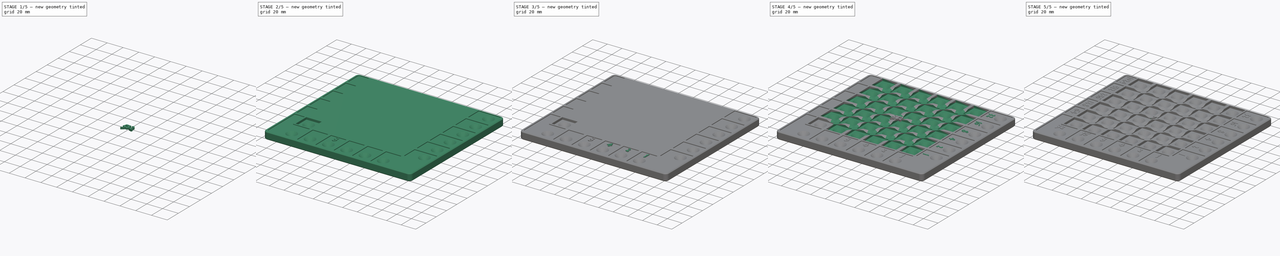
[diagram: build sequence overview — one tinted view per stage of 5, left to right]
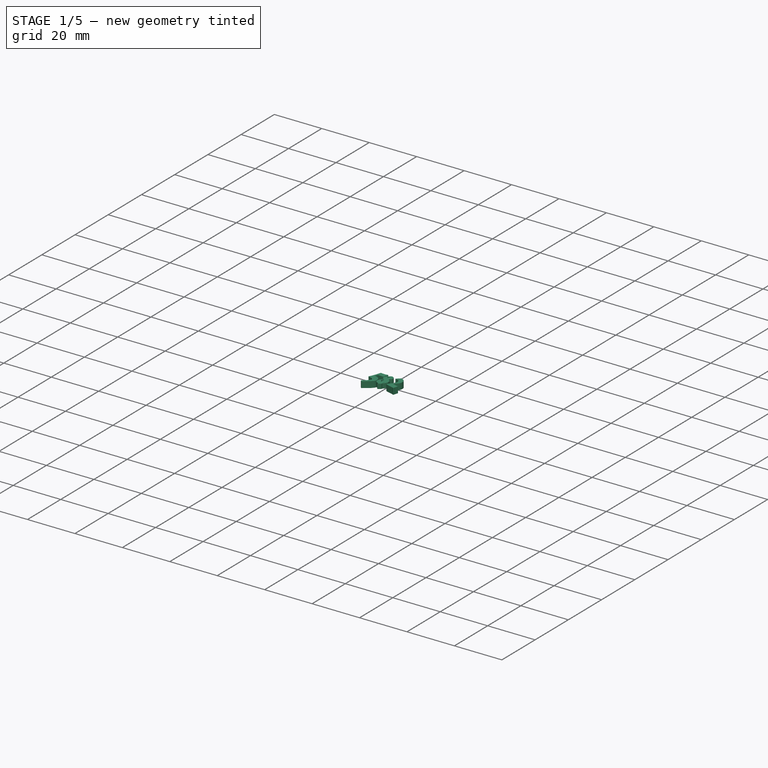
[diagram: stage 1 of 5 — iso view after this stage's code; geometry added in this stage tinted green]
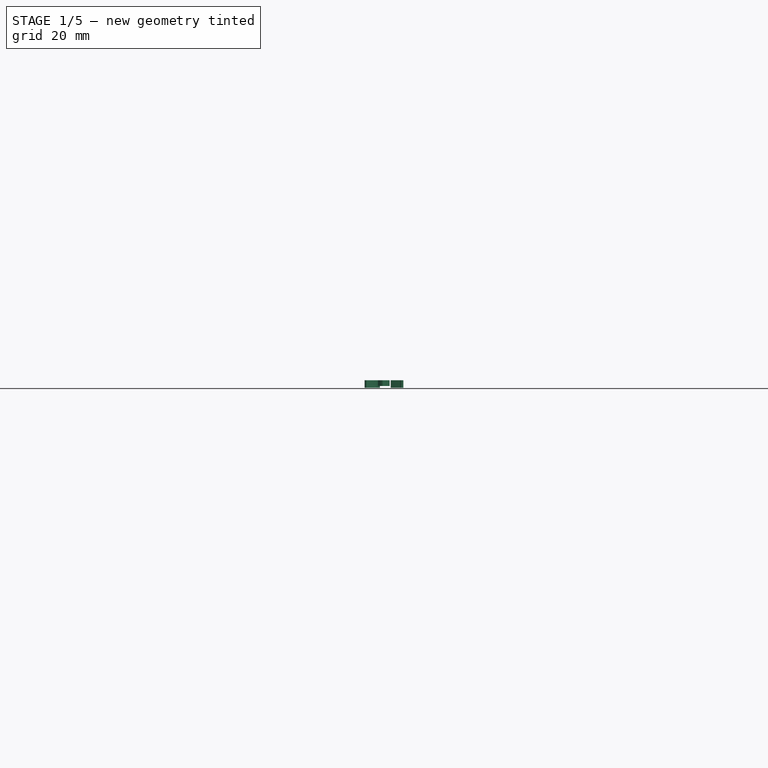
[diagram: stage 1 of 5 — front view after this stage's code; geometry added in this stage tinted green]
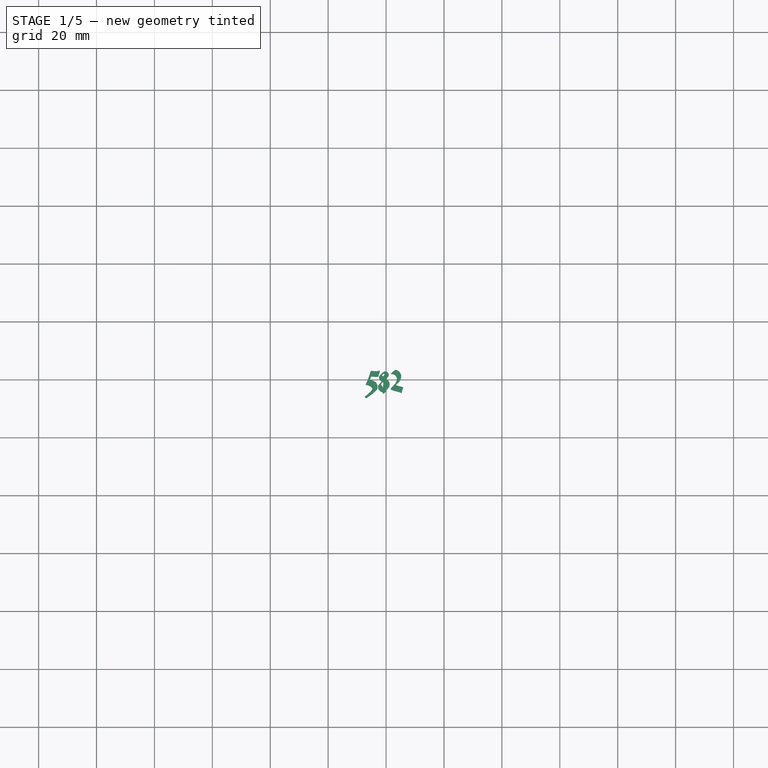
[diagram: stage 1 of 5 — top view after this stage's code; geometry added in this stage tinted green]
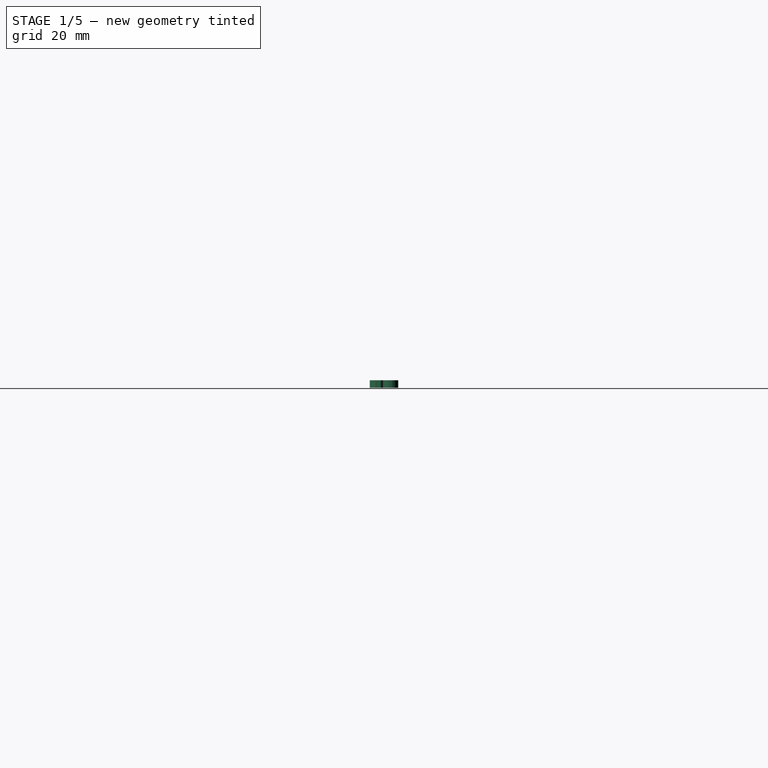
[diagram: stage 1 of 5 — right view after this stage's code; geometry added in this stage tinted green]
FCSTD DOCUMENT  (FreeCAD 0.22R37668 (Git))
Label: NapierBoard
License: Creative Commons Attribution-ShareAlike 3.0
LicenseURL: https://creativecommons.org/licenses/by-sa/3.0/
objects: Part::FeaturePython×29, App::Part×17, Part::Feature×15, Part::Extrusion×10, Sketcher::SketchObject×8, PartDesign::Pocket×5, Part::Cut×5, Part::MultiFuse×3, PartDesign::Pad×2, PartDesign::LinearPattern×2, PartDesign::Body×2, PartDesign::Chamfer×1, PartDesign::MultiTransform×1, Part::Box×1, App::Link×1
note: 92 computed .brp shape members not serialized (recipe doc carries the construction recipe); baked Part::Feature solids carry a one-line shape summary decoded from their .brp
EXTERNAL_REF file=qr/printables.FCStd obj=Clone

FEATURE [Part::Feature] Face  label="Face1num"
  shape: bbox 1.926 x 7.386 x 2e-07 mm, 1 faces, 0 solids (baked)
FEATURE [Part::Feature] Face001  label="Face2num"
  shape: bbox 3.355 x 6.209 x 2e-07 mm, 1 faces, 0 solids (baked)
FEATURE [Part::Feature] Face002  label="Face3num"
  shape: bbox 3.222 x 7.684 x 2e-07 mm, 1 faces, 0 solids (baked)
FEATURE [Part::Extrusion] Extrude001
  Base = -> Face
  Dir = (0,0,-1)
  DirMode = 0
  FaceMakerClass = Part::FaceMakerBullseye
  FaceMakerMode = 3
  LengthFwd = 2
  LengthRev = 0
  Placement = pos=(-39,76,0) rot=(0,0,1;0rad)
  Solid = false
  Symmetric = false
FEATURE [Part::Feature] Face003
  shape: bbox 4.796 x 6.395 x 2e-07 mm, 1 faces, 0 solids (baked)
FEATURE [Part::Feature] Face004
  shape: bbox 1.432 x 2.337 x 2e-07 mm, 1 faces, 0 solids (baked)
FEATURE [Part::Cut] Cut
  Base = -> Face003
  Tool = -> Face004
FEATURE [Part::Extrusion] Extrude003
  Base = -> Face001
  Dir = (0,0,-1)
  DirMode = 0
  FaceMakerClass = Part::FaceMakerBullseye
  FaceMakerMode = 3
  LengthFwd = 2
  LengthRev = 0
  Placement = pos=(-44,76,0) rot=(0,0,1;0rad)
  Solid = false
  Symmetric = false
FEATURE [Part::Feature] Face005
  shape: bbox 4.032 x 7.334 x 2e-07 mm, 1 faces, 0 solids (baked)
FEATURE [Part::Feature] Face006
  shape: bbox 4.422 x 6.718 x 2e-07 mm, 1 faces, 0 solids (baked)
FEATURE [Part::Feature] Face007
  shape: bbox 3.926 x 6.096 x 2e-07 mm, 1 faces, 0 solids (baked)
FEATURE [Part::Feature] Face008
  shape: bbox 4.022 x 7.25 x 2e-07 mm, 1 faces, 0 solids (baked)
FEATURE [Part::Feature] Face009
  shape: bbox 1.397 x 1.638 x 2e-07 mm, 1 faces, 0 solids (baked)
FEATURE [Part::Feature] Face010
  shape: bbox 1.926 x 2.453 x 2e-07 mm, 1 faces, 0 solids (baked)
FEATURE [Part::Feature] Face011
  shape: bbox 3.311 x 7.198 x 2e-07 mm, 1 faces, 0 solids (baked)
FEATURE [Part::Feature] Face012
  shape: bbox 1.507 x 2.625 x 2e-07 mm, 1 faces, 0 solids (baked)
FEATURE [Part::Feature] Face013
  shape: bbox 3.133 x 4.648 x 2e-07 mm, 1 faces, 0 solids (baked)
FEATURE [Part::Feature] Face014
  shape: bbox 1.304 x 2.481 x 2e-07 mm, 1 faces, 0 solids (baked)
FEATURE [Part::MultiFuse] Fusion
  Shapes = -> [Face009,Face010]
FEATURE [Part::Cut] Cut001
  Base = -> Face008
  Tool = -> Fusion
FEATURE [Part::Extrusion] Extrude
  Base = -> Cut001
  Dir = (0,0,-1)
  DirMode = 0
  FaceMakerClass = Part::FaceMakerBullseye
  FaceMakerMode = 3
  LengthFwd = 2
  LengthRev = 0
  Placement = pos=(-80.2,76,0) rot=(0,0,1;0rad)
  Solid = false
  Symmetric = false
FEATURE [Part::Extrusion] Extrude010
  Base = -> Face005
  Dir = (0,0,-1)
  DirMode = 0
  FaceMakerClass = Part::FaceMakerBullseye
  FaceMakerMode = 3
  LengthFwd = 2
  LengthRev = 0
  Placement = pos=(-61.8,76,0) rot=(0,0,1;0rad)
  Solid = false
  Symmetric = false
FEATURE [Part::FeaturePython] Clone001  label="Part011"  # Draft clone (typed FeaturePython)
  AttacherType = Attacher::AttachEngine3D
  Fuse = false
  Objects = -> [Part002]
  Placement = pos=(2,0,0) rot=(0,0,1;0rad)
  Scale = (1.3,1.3,1.3)
FEATURE [Part::FeaturePython] Clone005  label="Part015"  # Draft clone (typed FeaturePython)
  AttacherType = Attacher::AttachEngine3D
  Fuse = false
  Objects = -> [Clone001]
  Placement = pos=(0.5,0,0) rot=(0,0,1;0rad)
  Scale = (1,1,1)
FEATURE [Part::FeaturePython] Clone011  label="Part021"  # Draft clone (typed FeaturePython)
  AttacherType = Attacher::AttachEngine3D
  Fuse = false
  Objects = -> [Clone005]
  Placement = pos=(4.5,0,0) rot=(0,0,1;0rad)
  Scale = (1,1,1)
FEATURE [App::Part] Part010  label="Part1024"
  Group = -> [Clone014,Clone013,Clone010,Clone021]
  Origin = -> Origin011
  Placement = pos=(-81,65,0) rot=(0,0,1;4.71239rad)
FEATURE [Part::FeaturePython] Clone009  label="Part019"  # Draft clone (typed FeaturePython)
  AttacherType = Attacher::AttachEngine3D
  Fuse = false
  Objects = -> [Part005]
  Placement = pos=(-4,0,0) rot=(0,0,1;0rad)
  Scale = (1.3,1.3,1.3)
FEATURE [App::Part] Part017  label="Part512"
  Group = -> [Clone009,Clone011,Clone012]
  Origin = -> Origin019
  Placement = pos=(-81,37,0) rot=(0,0,1;4.71239rad)
FEATURE [Part::Box] Box  label="Cube"
  AttacherType = Attacher::AttachEngine3D
  Height = 2
  Length = 3.5
  Placement = pos=(-2,-1.7,-2) rot=(0,0,1;0.802851rad)
  Width = 0.4
FEATURE [Part::MultiFuse] Fusion002
  Refine = true
  Shapes = -> [Box,Extrude]
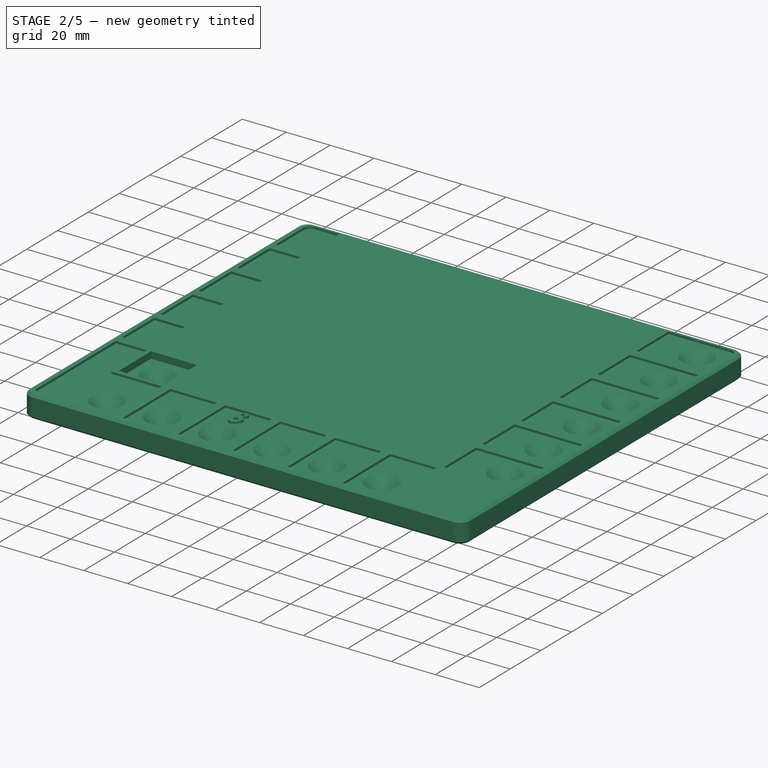
[diagram: stage 2 of 5 — iso view after this stage's code; geometry added in this stage tinted green]
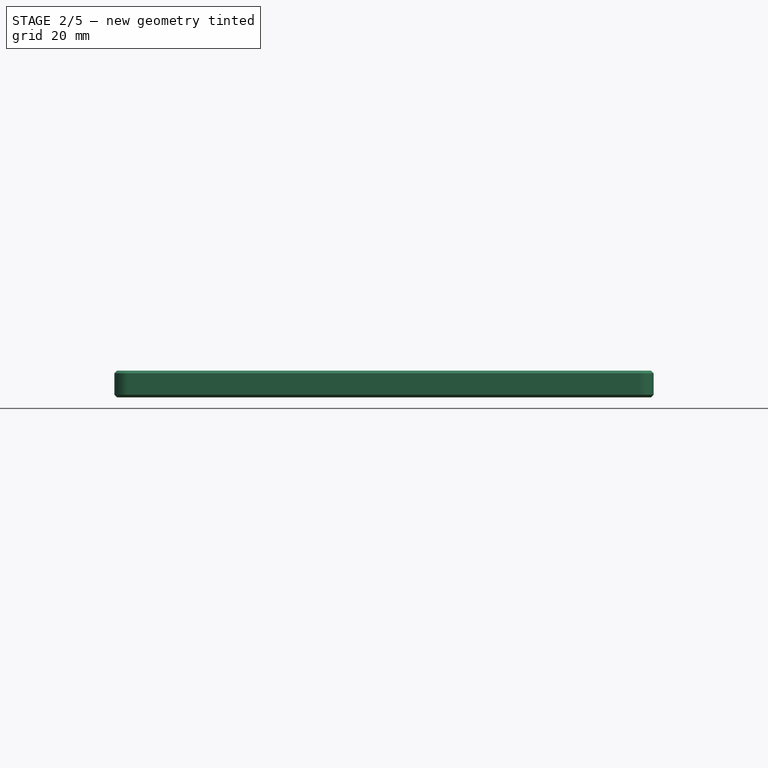
[diagram: stage 2 of 5 — front view after this stage's code; geometry added in this stage tinted green]
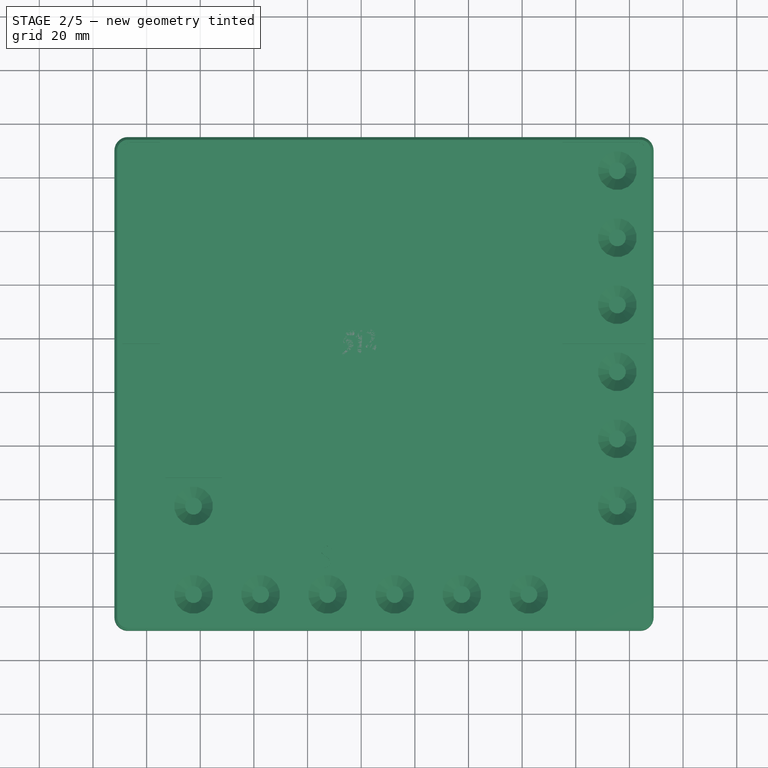
[diagram: stage 2 of 5 — top view after this stage's code; geometry added in this stage tinted green]
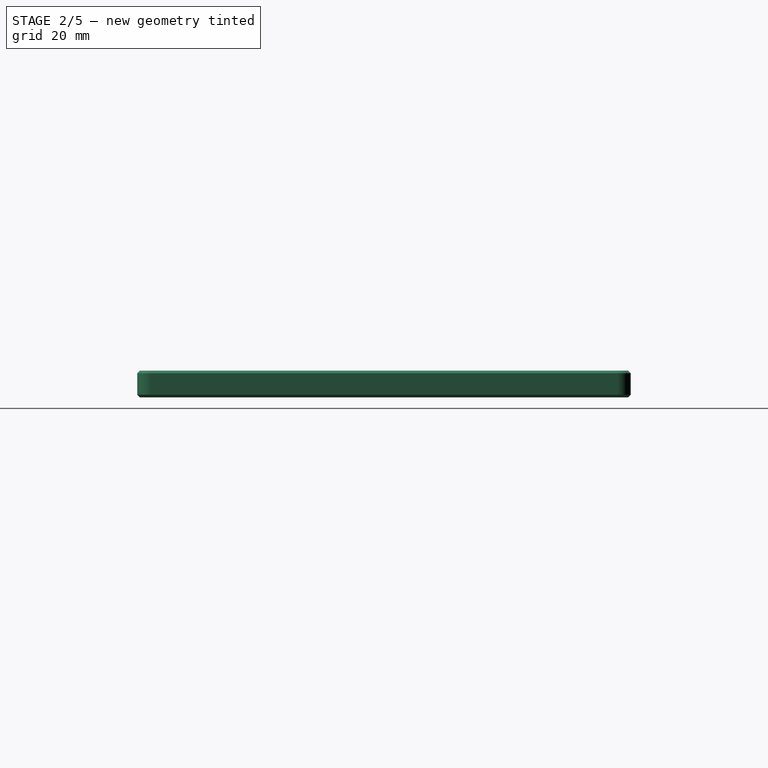
[diagram: stage 2 of 5 — right view after this stage's code; geometry added in this stage tinted green]
FEATURE [Sketcher::SketchObject] Sketch
  AttachmentSupport = -> [XY_Plane]
  FullyConstrained = true
  MapMode = 5
  Support = -> [XY_Plane]
  sketch-geometry (12):
    g0: LineSegment StartX=-92 StartY=70 StartZ=0 EndX=-92 EndY=-104 EndZ=0
    g1: LineSegment StartX=-87 StartY=-109 StartZ=0 EndX=104 EndY=-109 EndZ=0
    g2: LineSegment StartX=109 StartY=-104 StartZ=0 EndX=109 EndY=70 EndZ=0
    g3: LineSegment StartX=104 StartY=75 StartZ=0 EndX=-87 EndY=75 EndZ=0
    g4: ArcOfCircle CenterX=-87 CenterY=70 CenterZ=0 NormalX=0 NormalY=0 NormalZ=1 AngleXU=0 Radius=5 StartAngle=1.5708 EndAngle=3.14159
    g5: GeomPoint X=-92 Y=75 Z=0
    g6: ArcOfCircle CenterX=104 CenterY=70 CenterZ=0 NormalX=0 NormalY=0 NormalZ=1 AngleXU=0 Radius=5 StartAngle=-9e-16 EndAngle=1.5708
    g7: GeomPoint X=109 Y=75 Z=0
    g8: ArcOfCircle CenterX=104 CenterY=-104 CenterZ=0 NormalX=0 NormalY=0 NormalZ=1 AngleXU=0 Radius=5 StartAngle=4.71239 EndAngle=6.28319
    g9: GeomPoint X=109 Y=-109 Z=0
    g10: ArcOfCircle CenterX=-87 CenterY=-104 CenterZ=0 NormalX=0 NormalY=0 NormalZ=1 AngleXU=0 Radius=5 StartAngle=3.14159 EndAngle=4.71239
    g11: GeomPoint X=-92 Y=-109 Z=0
  constraints (28):
    c: Vertical(g0)
    c: Vertical(g2)
    c: Horizontal(g1)
    c: Horizontal(g3)
    c: PointOnObject(g5,g0)
    c: PointOnObject(g5,g3)
    c: Tangent(g0,g4) = -1.5708
    c: Tangent(g3,g4) = -1.5708
    c: PointOnObject(g7,g2)
    c: PointOnObject(g7,g3)
    c: Tangent(g2,g6) = -1.5708
    c: Tangent(g3,g6) = -1.5708
    c: PointOnObject(g9,g1)
    c: PointOnObject(g9,g2)
    c: Tangent(g1,g8) = -1.5708
    c: Tangent(g2,g8) = -1.5708
    c: PointOnObject(g11,g0)
    c: PointOnObject(g11,g1)
    c: Tangent(g0,g10) = -1.5708
    c: Tangent(g1,g10) = -1.5708
    c: Equal(g10,g4)
    c: Equal(g4,g6)
    c: Equal(g6,g8)
    c: Radius(g6) = 5
    c: DistanceX(g0,g2) = 201
    c: DistanceY(g1,g3) = 184
    c: DistanceX(g10) = -87
    c: DistanceY(g10) = -104
FEATURE [PartDesign::Pad] Pad
  Direction = (0,0,1)
  Length = 10
  Length2 = 10
  Profile = -> Sketch
  ReferenceAxis = -> Sketch [N_Axis]
  Refine = true
  Reversed = true
  Suppressed = false
  Type = 0
FEATURE [PartDesign::Chamfer] Chamfer
  Angle = 45
  Base = -> Pad [Edge4,Edge3]
  BaseFeature = -> Pad
  ChamferType = 0
  FlipDirection = false
  Refine = true
  Size = 1
  Size2 = 1
  SupportTransform = false
  Suppressed = false
  UseAllEdges = false
FEATURE [Sketcher::SketchObject] Sketch002  label="Square_Sketch002"
  AttachmentOffset = pos=(-62.5,-62.5,0) rot=(0,0,1;0rad)
  AttachmentSupport = -> [XY_Plane]
  FullyConstrained = true
  MapMode = 5
  Placement = pos=(-62.5,-62.5,0) rot=(0,0,1;0rad)
  Support = -> [XY_Plane]
  sketch-geometry (5):
    g0: LineSegment StartX=-10.5 StartY=10.5 StartZ=0 EndX=-10.5 EndY=-10.5 EndZ=0
    g1: LineSegment StartX=-10.5 StartY=-10.5 StartZ=0 EndX=10.5 EndY=-10.5 EndZ=0
    g2: LineSegment StartX=10.5 StartY=-10.5 StartZ=0 EndX=10.5 EndY=10.5 EndZ=0
    g3: LineSegment StartX=10.5 StartY=10.5 StartZ=0 EndX=-10.5 EndY=10.5 EndZ=0
    g4: GeomPoint X=0 Y=0 Z=0
  constraints (12):
    c: Coincident(g0,g1)
    c: Coincident(g1,g2)
    c: Coincident(g2,g3)
    c: Coincident(g3,g0)
    c: Vertical(g0)
    c: Vertical(g2)
    c: Horizontal(g1)
    c: Horizontal(g3)
    c: Symmetric(g2,g0,g4)
    c: Distance(g0,g2) = 21
    c: Coincident(g4,g-1)
    c: Equal(g0,g3)
FEATURE [Sketcher::SketchObject] Sketch003  label="groove-sketch-unused"
  AttachmentOffset = pos=(-62.5,0,62.5) rot=(0,0,1;0rad)
  AttachmentSupport = -> [XZ_Plane]
  FullyConstrained = false
  MapMode = 5
  Placement = pos=(-62.5,-62.5,1.39e-14) rot=(1,0,0;1.5708rad)
  Support = -> [XZ_Plane]
  sketch-geometry (7):
    g0: LineSegment StartX=0 StartY=-7 StartZ=0 EndX=3.2 EndY=-7 EndZ=0
    g1: LineSegment StartX=3.2 StartY=-7 StartZ=0 EndX=10.2219 EndY=0.0218545 EndZ=0
    g2: LineSegment StartX=10.2219 StartY=0.0218545 StartZ=0 EndX=0 EndY=0 EndZ=0
    g3: LineSegment StartX=0 StartY=0 StartZ=0 EndX=0 EndY=-7 EndZ=0
    g4: Circle CenterX=0 CenterY=1.11371 CenterZ=0 NormalX=0 NormalY=0 NormalZ=1 AngleXU=0 Radius=8
    g5: Circle CenterX=0 CenterY=7.21812 CenterZ=0 NormalX=0 NormalY=0 NormalZ=1 AngleXU=0 Radius=12.5
    g6: LineSegment StartX=7.2 StartY=-3 StartZ=0 EndX=-7.2 EndY=-3 EndZ=0
  constraints (21):
    c: Horizontal(g0)
    c: Coincident(g0,g1)
    c: Coincident(g1,g2)
    c: Coincident(g2,g-1)
    c: Coincident(g2,g3)
    c: Coincident(g3,g0)
    c: DistanceX(g0,g0) = 3.2
    c: Angle(g1) = 0.785398
    c: DistanceY(g3,g3) = 7
    c: Vertical(g3)
    c: PointOnObject(g4,g-2)
    c: Tangent(g4,g1)
    c: Diameter(g4) = 16
    c: PointOnObject(g5,g-2)
    c: Diameter(g5) = 25
    c: PointOnObject(g6,g1)
    c: PointOnObject(g6,g5)
    c: Horizontal(g6)
    c: PointOnObject(g6,g5)
    c: DistanceY(g6) = -3
    c: DistanceX(g6,g6) = 14.4
FEATURE [PartDesign::LinearPattern] LinearPattern
  Direction = -> Sketch002 [H_Axis]
  Length = 125
  Mode = 1
  Occurrences = 6
  Offset = 25
  Suppressed = false
  TransformMode = 0
FEATURE [PartDesign::LinearPattern] LinearPattern001
  Direction = -> Sketch002 [V_Axis]
  Length = 125
  Mode = 1
  Occurrences = 6
  Offset = 25
  Suppressed = false
  TransformMode = 0
FEATURE [Sketcher::SketchObject] Sketch004
  AttachmentSupport = -> [XY_Plane]
  FullyConstrained = true
  MapMode = 5
  Support = -> [XY_Plane]
  sketch-geometry (90):
    g0: LineSegment StartX=-86 StartY=-106 StartZ=0 EndX=-52 EndY=-106 EndZ=0
    g1: LineSegment StartX=-52 StartY=-106 StartZ=0 EndX=-52 EndY=-75 EndZ=0
    g2: LineSegment StartX=-52 StartY=-75 StartZ=0 EndX=-75 EndY=-75 EndZ=0
    g3: LineSegment StartX=-48 StartY=-75 StartZ=0 EndX=-48 EndY=-106 EndZ=0
    g4: LineSegment StartX=-48 StartY=-106 StartZ=0 EndX=-27 EndY=-106 EndZ=0
    g5: LineSegment StartX=-27 StartY=-106 StartZ=0 EndX=-27 EndY=-75 EndZ=0
    g6: LineSegment StartX=-27 StartY=-75 StartZ=0 EndX=-48 EndY=-75 EndZ=0
    g7: LineSegment StartX=-23 StartY=-75 StartZ=0 EndX=-23 EndY=-106 EndZ=0
    g8: LineSegment StartX=-23 StartY=-106 StartZ=0 EndX=-2 EndY=-106 EndZ=0
    g9: LineSegment StartX=-2 StartY=-106 StartZ=0 EndX=-2 EndY=-75 EndZ=0
    g10: LineSegment StartX=-2 StartY=-75 StartZ=0 EndX=-23 EndY=-75 EndZ=0
    g11: LineSegment StartX=2 StartY=-75 StartZ=0 EndX=2 EndY=-106 EndZ=0
    g12: LineSegment StartX=2 StartY=-106 StartZ=0 EndX=23 EndY=-106 EndZ=0
    g13: LineSegment StartX=23 StartY=-106 StartZ=0 EndX=23 EndY=-75 EndZ=0
    g14: LineSegment StartX=23 StartY=-75 StartZ=0 EndX=2 EndY=-75 EndZ=0
    g15: LineSegment StartX=27 StartY=-75 StartZ=0 EndX=27 EndY=-106 EndZ=0
    g16: LineSegment StartX=27 StartY=-106 StartZ=0 EndX=48 EndY=-106 EndZ=0
    g17: LineSegment StartX=48 StartY=-106 StartZ=0 EndX=48 EndY=-75 EndZ=0
    g18: LineSegment StartX=48 StartY=-75 StartZ=0 EndX=27 EndY=-75 EndZ=0
    g19: LineSegment StartX=52 StartY=-75 StartZ=0 EndX=52 EndY=-106 EndZ=0
    g20: LineSegment StartX=52 StartY=-106 StartZ=0 EndX=73 EndY=-106 EndZ=0
    g21: LineSegment StartX=73 StartY=-106 StartZ=0 EndX=73 EndY=-75 EndZ=0
    g22: LineSegment StartX=73 StartY=-75 StartZ=0 EndX=52 EndY=-75 EndZ=0
    g23: LineSegment StartX=-52 StartY=-106 StartZ=0 EndX=-48 EndY=-106 EndZ=0
    g24: LineSegment StartX=-27 StartY=-106 StartZ=0 EndX=-23 EndY=-106 EndZ=0
    g25: LineSegment StartX=-2 StartY=-106 StartZ=0 EndX=2 EndY=-106 EndZ=0
    g26: LineSegment StartX=23 StartY=-106 StartZ=0 EndX=27 EndY=-106 EndZ=0
    g27: LineSegment StartX=48 StartY=-106 StartZ=0 EndX=52 EndY=-106 EndZ=0
    g28: LineSegment StartX=-89 StartY=-52 StartZ=0 EndX=-89 EndY=-103 EndZ=0
    g29: ArcOfCircle CenterX=-86 CenterY=-103 CenterZ=0 NormalX=0 NormalY=0 NormalZ=1 AngleXU=0 Radius=3 StartAngle=3.14159 EndAngle=4.71239
    g30: LineSegment StartX=-75 StartY=-52 StartZ=0 EndX=-89 EndY=-52 EndZ=0
    g31: LineSegment StartX=-75 StartY=-75 StartZ=0 EndX=-75 EndY=-52 EndZ=0
    g32: LineSegment StartX=75 StartY=73 StartZ=0 EndX=75 EndY=52 EndZ=0
    g33: LineSegment StartX=75 StartY=52 StartZ=0 EndX=106 EndY=52 EndZ=0
    g34: LineSegment StartX=106 StartY=52 StartZ=0 EndX=106 EndY=70 EndZ=0
    g35: LineSegment StartX=75 StartY=48 StartZ=0 EndX=106 EndY=48.0001 EndZ=0
    g36: LineSegment StartX=106 StartY=48.0001 StartZ=0 EndX=106 EndY=27 EndZ=0
    g37: LineSegment StartX=106 StartY=27 StartZ=0 EndX=75 EndY=27 EndZ=0
    g38: LineSegment StartX=75 StartY=27 StartZ=0 EndX=75 EndY=48 EndZ=0
    g39: LineSegment StartX=75 StartY=23 StartZ=0 EndX=75 EndY=2 EndZ=0
    g40: LineSegment StartX=75 StartY=2 StartZ=0 EndX=106 EndY=2 EndZ=0
    g41: LineSegment StartX=106 StartY=2 StartZ=0 EndX=106 EndY=23.0001 EndZ=0
    g42: LineSegment StartX=106 StartY=23.0001 StartZ=0 EndX=75 EndY=23 EndZ=0
    g43: LineSegment StartX=75 StartY=-2 StartZ=0 EndX=106 EndY=-1.99994 EndZ=0
    g44: LineSegment StartX=106 StartY=-1.99994 StartZ=0 EndX=106 EndY=-23 EndZ=0
    g45: LineSegment StartX=106 StartY=-23 StartZ=0 EndX=75 EndY=-23 EndZ=0
    g46: LineSegment StartX=75 StartY=-23 StartZ=0 EndX=75 EndY=-2 EndZ=0
    g47: LineSegment StartX=75 StartY=-26.9999 StartZ=0 EndX=75 EndY=-47.9999 EndZ=0
    g48: LineSegment StartX=75 StartY=-47.9999 StartZ=0 EndX=106 EndY=-47.9999 EndZ=0
    g49: LineSegment StartX=106 StartY=-47.9999 StartZ=0 EndX=106 EndY=-26.9999 EndZ=0
    g50: LineSegment StartX=106 StartY=-26.9999 StartZ=0 EndX=75 EndY=-26.9999 EndZ=0
    g51: LineSegment StartX=75 StartY=-51.9999 StartZ=0 EndX=75 EndY=-72.9999 EndZ=0
    g52: LineSegment StartX=75 StartY=-72.9999 StartZ=0 EndX=106 EndY=-72.9999 EndZ=0
    g53: LineSegment StartX=106 StartY=-72.9999 StartZ=0 EndX=106 EndY=-51.9999 EndZ=0
    g54: LineSegment StartX=106 StartY=-51.9999 StartZ=0 EndX=75 EndY=-51.9999 EndZ=0
    g55: LineSegment StartX=106 StartY=-51.9999 StartZ=0 EndX=106 EndY=-47.9999 EndZ=0
    g56: LineSegment StartX=106 StartY=-26.9999 StartZ=0 EndX=106 EndY=-23 EndZ=0
    g57: LineSegment StartX=106 StartY=-1.99994 StartZ=0 EndX=106 EndY=2 EndZ=0
    g58: LineSegment StartX=106 StartY=23.0001 StartZ=0 EndX=106 EndY=27 EndZ=0
    g59: LineSegment StartX=106 StartY=48.0001 StartZ=0 EndX=106 EndY=52 EndZ=0
    g60: LineSegment StartX=-89 StartY=-52 StartZ=0 EndX=-89 EndY=-48 EndZ=0
    g61: LineSegment StartX=-89 StartY=-48 StartZ=0 EndX=-89 EndY=-27 EndZ=0
    g62: LineSegment StartX=-89 StartY=-27 StartZ=0 EndX=-89 EndY=-23 EndZ=0
    g63: LineSegment StartX=-89 StartY=-23 StartZ=0 EndX=-89 EndY=-2 EndZ=0
    g64: LineSegment StartX=-89 StartY=-2 StartZ=0 EndX=-89 EndY=2 EndZ=0
    g65: LineSegment StartX=-89 StartY=2 StartZ=0 EndX=-89 EndY=23 EndZ=0
    g66: LineSegment StartX=-89 StartY=23 StartZ=0 EndX=-89 EndY=27 EndZ=0
    g67: LineSegment StartX=-89 StartY=27 StartZ=0 EndX=-89 EndY=48 EndZ=0
    g68: LineSegment StartX=-89 StartY=48 StartZ=0 EndX=-89 EndY=52 EndZ=0
    g69: LineSegment StartX=-89 StartY=52 StartZ=0 EndX=-89 EndY=70 EndZ=0
    g70: LineSegment StartX=-86 StartY=73 StartZ=0 EndX=-75 EndY=73 EndZ=0
    g71: LineSegment StartX=-75 StartY=73 StartZ=0 EndX=-75 EndY=52 EndZ=0
    g72: LineSegment StartX=-75 StartY=52 StartZ=0 EndX=-89 EndY=52 EndZ=0
    g73: LineSegment StartX=-89 StartY=48 StartZ=0 EndX=-75 EndY=48 EndZ=0
    g74: LineSegment StartX=-75 StartY=48 StartZ=0 EndX=-75 EndY=27 EndZ=0
    g75: LineSegment StartX=-75 StartY=27 StartZ=0 EndX=-89 EndY=27 EndZ=0
    g76: LineSegment StartX=-89 StartY=23 StartZ=0 EndX=-75 EndY=23 EndZ=0
    g77: LineSegment StartX=-75 StartY=23 StartZ=0 EndX=-75 EndY=2 EndZ=0
    g78: LineSegment StartX=-75 StartY=2 StartZ=0 EndX=-89 EndY=2 EndZ=0
    g79: LineSegment StartX=-89 StartY=-2 StartZ=0 EndX=-75 EndY=-2 EndZ=0
    g80: LineSegment StartX=-75 StartY=-2 StartZ=0 EndX=-75 EndY=-23 EndZ=0
    g81: LineSegment StartX=-75 StartY=-23 StartZ=0 EndX=-89 EndY=-23 EndZ=0
    g82: LineSegment StartX=-89 StartY=-27 StartZ=0 EndX=-75 EndY=-27 EndZ=0
    g83: LineSegment StartX=-75 StartY=-27 StartZ=0 EndX=-75 EndY=-48 EndZ=0
    g84: LineSegment StartX=-75 StartY=-48 StartZ=0 EndX=-89 EndY=-48 EndZ=0
    g85: LineSegment StartX=75 StartY=73 StartZ=0 EndX=103 EndY=73 EndZ=0
    g86: ArcOfCircle CenterX=-86 CenterY=70 CenterZ=0 NormalX=0 NormalY=0 NormalZ=1 AngleXU=0 Radius=3 StartAngle=1.5708 EndAngle=3.14159
    g87: GeomPoint X=-89 Y=73 Z=0
    g88: ArcOfCircle CenterX=103 CenterY=70 CenterZ=0 NormalX=0 NormalY=0 NormalZ=1 AngleXU=0 Radius=3 StartAngle=-2.7e-15 EndAngle=1.5708
    g89: GeomPoint X=106 Y=73 Z=0
  constraints (249):
    c: Coincident(g0,g1)
    c: Coincident(g1,g2)
    c: Coincident(g2,g31)
    c: Horizontal(g0)
    c: Horizontal(g2)
    c: DistanceX(g2,g2) = 23
    c: DistanceY(g1,g1) = 31
    c: Coincident(g3,g4)
    c: Horizontal(g4)
    c: Coincident(g4,g5)
    c: Coincident(g5,g6)
    c: Coincident(g6,g3)
    c: Horizontal(g6)
    c: Coincident(g7,g8)
    c: Horizontal(g8)
    c: Coincident(g8,g9)
    c: Coincident(g9,g10)
    c: Coincident(g10,g7)
    c: Horizontal(g10)
    c: Coincident(g11,g12)
    c: Horizontal(g12)
    c: Coincident(g12,g13)
    c: Coincident(g13,g14)
    c: Coincident(g14,g11)
    c: Horizontal(g14)
    c: Coincident(g15,g16)
    c: Horizontal(g16)
    c: Coincident(g16,g17)
    c: Coincident(g17,g18)
    c: Coincident(g18,g15)
    c: Horizontal(g18)
    c: Coincident(g19,g20)
    c: Horizontal(g20)
    c: Coincident(g20,g21)
    c: Coincident(g21,g22)
    c: Coincident(g22,g19)
    c: Horizontal(g22)
    c: Equal(g4,g8)
    c: Equal(g8,g12)
    c: Equal(g12,g16)
    c: Equal(g16,g20)
    c: Equal(g20,g22)
    c: Equal(g22,g18)
    c: Equal(g18,g14)
    c: Equal(g14,g10)
    c: Equal(g10,g6)
    c: Parallel(g5,g7)
    c: Parallel(g9,g11)
    c: Parallel(g13,g15)
    c: Parallel(g17,g19)
    c: Parallel(g3,g1)
    c: Coincident(g23,g0)
    c: Coincident(g23,g3)
    c: Coincident(g24,g4)
    c: Coincident(g24,g7)
    c: Horizontal(g24)
    c: Coincident(g25,g8)
    c: Coincident(g25,g11)
    c: Coincident(g26,g12)
    c: Coincident(g26,g15)
    c: Coincident(g27,g16)
    c: Coincident(g27,g19)
    c: Horizontal(g27)
    c: Horizontal(g26)
    c: Horizontal(g25)
    c: Horizontal(g23)
    c: Equal(g23,g24)
    c: Equal(g24,g25)
    c: Equal(g25,g26)
    c: Equal(g26,g27)
    c: Equal(g21,g17)
    c: Equal(g17,g13)
    c: Equal(g13,g9)
    c: Equal(g9,g5)
    c: Equal(g5,g1)
    c: DistanceX(g0,g4) = 25
    c: DistanceX(g0,g3) = 4
    c: DistanceX(g31) = -75
    c: Coincident(g30,g28)
    c: DistanceX(g30,g31) = 14
    c: Vertical(g28)
    c: Radius(g29) = 3
    c: Tangent(g29,g0) = -1.5708
    c: Tangent(g29,g28) = -1.5708
    c: Coincident(g30,g31)
    c: Vertical(g31)
    c: Equal(g2,g31)
    c: Coincident(g32,g33)
    c: Coincident(g33,g34)
    c: Vertical(g34)
    c: Vertical(g32)
    c: Coincident(g35,g36)
    c: Vertical(g36)
    c: Coincident(g36,g37)
    c: Coincident(g37,g38)
    c: Coincident(g38,g35)
    c: Vertical(g38)
    c: Vertical(g39)
    c: Coincident(g39,g40)
    c: Coincident(g40,g41)
    c: Vertical(g41)
    c: Coincident(g41,g42)
    c: Coincident(g42,g39)
    c: Coincident(g43,g44)
    c: Vertical(g44)
    c: Coincident(g44,g45)
    c: Coincident(g45,g46)
    c: Coincident(g46,g43)
    c: Vertical(g46)
    c: Vertical(g47)
    c: Coincident(g47,g48)
    c: Coincident(g48,g49)
    c: Vertical(g49)
    c: Coincident(g49,g50)
    c: Coincident(g50,g47)
    c: Vertical(g51)
    c: Coincident(g51,g52)
    c: Coincident(g52,g53)
    c: Vertical(g53)
    c: Coincident(g53,g54)
    c: Coincident(g54,g51)
    c: Coincident(g55,g53)
    c: Coincident(g55,g48)
    c: Coincident(g56,g49)
    c: Coincident(g56,g44)
    c: Coincident(g57,g43)
    c: Coincident(g57,g40)
    c: Coincident(g58,g41)
    c: Coincident(g58,g36)
    c: Coincident(g59,g35)
    c: Coincident(g59,g33)
    c: Vertical(g59)
    c: Vertical(g58)
    c: Vertical(g57)
    c: Vertical(g56)
    c: Vertical(g55)
    c: Equal(g55,g56)
    c: Equal(g56,g57)
    c: Equal(g57,g58)
    c: Equal(g58,g59)
    c: Parallel(g33,g37)
    c: Parallel(g37,g40)
    c: Parallel(g40,g45)
    c: Parallel(g45,g48)
    c: Parallel(g48,g52)
    c: Equal(g52,g48)
    c: Equal(g48,g45)
    c: Equal(g45,g40)
    c: Equal(g40,g37)
    c: Equal(g37,g35)
    c: Equal(g35,g33)
    c: Equal(g38,g39)
    c: Equal(g39,g46)
    c: Equal(g46,g47)
    c: Equal(g47,g51)
    c: Equal(g51,g53)
    c: Equal(g44,g41)
    c: Equal(g41,g36)
    c: DistanceY(g36,g33) = 25
    c: Parallel(g50,g45)
    c: Coincident(g28,g60)
    c: Vertical(g60)
    c: Coincident(g60,g61)
    c: Vertical(g61)
    c: Coincident(g61,g62)
    c: Vertical(g62)
    c: Coincident(g62,g63)
    c: Vertical(g63)
    c: Coincident(g63,g64)
    c: Vertical(g64)
    c: Coincident(g64,g65)
    c: Vertical(g65)
    c: Coincident(g65,g66)
    c: Vertical(g66)
    c: Coincident(g66,g67)
    c: Vertical(g67)
    c: Coincident(g67,g68)
    c: Vertical(g68)
    c: Coincident(g68,g69)
    c: Vertical(g69)
    c: Coincident(g70,g71)
    c: Vertical(g71)
    c: Coincident(g71,g72)
    c: Coincident(g72,g68)
    c: Coincident(g67,g73)
    c: Coincident(g73,g74)
    c: Vertical(g74)
    c: Coincident(g74,g75)
    c: Coincident(g75,g66)
    c: Coincident(g65,g76)
    c: Coincident(g76,g77)
    c: Vertical(g77)
    c: Coincident(g77,g78)
    c: Coincident(g78,g64)
    c: Coincident(g63,g79)
    c: Coincident(g79,g80)
    c: Vertical(g80)
    c: Coincident(g80,g81)
    c: Coincident(g81,g62)
    c: Coincident(g61,g82)
    c: Coincident(g82,g83)
    c: Vertical(g83)
    c: Coincident(g83,g84)
    c: Coincident(g84,g60)
    c: Equal(g60,g62)
    c: Equal(g62,g64)
    c: Equal(g64,g66)
    c: Equal(g66,g68)
    c: DistanceY(g28,g61) = 25
    c: Equal(g61,g4)
    c: Parallel(g30,g84)
    c: Parallel(g84,g82)
    c: Parallel(g82,g81)
    c: Parallel(g81,g79)
    c: Parallel(g79,g78)
    c: Parallel(g78,g76)
    c: Parallel(g76,g75)
    c: Parallel(g75,g73)
    c: Parallel(g73,g72)
    c: Parallel(g72,g70)
    c: Vertical(g71,g73)
    c: Vertical(g74,g76)
    c: Vertical(g77,g79)
    c: Vertical(g80,g82)
    c: Vertical(g30,g83)
    c: Equal(g63,g61)
    c: Equal(g61,g65)
    c: Equal(g65,g67)
    c: Equal(g1,g33)
    c: Equal(g38,g6)
    c: Horizontal(g52)
    c: Vertical(g21)
    c: Horizontal(g30)
    c: DistanceY(g1) = -75
    c: Coincident(g85,g32)
    c: Horizontal(g85)
    c: Equal(g32,g38)
    c: Symmetric(g32,g70,g-2)
    c: PointOnObject(g87,g69)
    c: PointOnObject(g87,g70)
    c: Tangent(g69,g86) = 1.5708
    c: Tangent(g70,g86) = 1.5708
    c: Equal(g74,g71)
    c: Equal(g86,g29)
    c: PointOnObject(g89,g34)
    c: PointOnObject(g89,g85)
    c: Tangent(g34,g88) = -1.5708
    c: Tangent(g85,g88) = 1.5708
    c: Equal(g29,g88)
FEATURE [PartDesign::Pocket] Pocket002  label="RandH"
  BaseFeature = -> Chamfer
  Direction = (0,0,-1)
  Length = 1
  Length2 = 5
  Profile = -> Sketch004
  ReferenceAxis = -> Sketch004 [N_Axis]
  Refine = true
  Suppressed = false
  Type = 0
FEATURE [App::Part] Part  label="Part000"
  Group = -> [Cut003,Face013,Face014,Extrude007]
  Origin = -> Origin001
  Placement = pos=(-86,62.5,0) rot=(0,0,1;0rad)
FEATURE [App::Part] Part001
  Group = -> [Face,Extrude001]
  Origin = -> Origin002
  Placement = pos=(54,-83,0) rot=(0,0,1;0rad)
FEATURE [App::Part] Part002
  Group = -> [Face001,Extrude003]
  Origin = -> Origin003
  Placement = pos=(29,-83,0) rot=(0,0,1;0rad)
FEATURE [App::Part] Part003
  Group = -> [Face002,Extrude004]
  Origin = -> Origin004
  Placement = pos=(-85.5,-83,0) rot=(0,0,1;0rad)
FEATURE [App::Part] Part004
  Group = -> [Face004,Face003,Cut,Extrude005]
  Origin = -> Origin005
  Placement = pos=(4,-83,0) rot=(0,0,1;0rad)
FEATURE [App::Part] Part005
  Group = -> [Face005,Extrude010]
  Origin = -> Origin006
  Placement = pos=(-84,12.5,0) rot=(0,0,1;0rad)
FEATURE [App::Part] Part006
  Group = -> [Face006,Extrude009]
  Origin = -> Origin007
  Placement = pos=(-35,-83,0) rot=(0,0,1;0rad)
FEATURE [App::Part] Part007
  Group = -> [Face007,Extrude008]
  Origin = -> Origin008
  Placement = pos=(28,0,0) rot=(0,0,1;0rad)
FEATURE [App::Part] Part009
  Group = -> [Face011,Cut002,Face012,Extrude006]
  Origin = -> Origin010
  Placement = pos=(36,0,0) rot=(0,0,1;0rad)
FEATURE [Part::FeaturePython] Clone  label="Part010"  # Draft clone (typed FeaturePython)
  AttacherType = Attacher::AttachEngine3D
  Fuse = false
  Objects = -> [Part001]
  Placement = pos=(-3,0,0) rot=(0,0,1;0rad)
  Scale = (1.3,1.3,1.3)
FEATURE [Part::FeaturePython] Clone004  label="Part014"  # Draft clone (typed FeaturePython)
  AttacherType = Attacher::AttachEngine3D
  Fuse = false
  Objects = -> [Clone]
  Placement = pos=(-4,0,0) rot=(0,0,1;0rad)
  Scale = (1,1,1)
FEATURE [Part::FeaturePython] Clone010  label="Part020"  # Draft clone (typed FeaturePython)
  AttacherType = Attacher::AttachEngine3D
  Fuse = false
  Objects = -> [Clone004]
  Placement = pos=(-5,0,0) rot=(0,0,1;0rad)
  Scale = (1,1,1)
FEATURE [Sketcher::SketchObject] Sketch009  label="cone_Sketch009"
  AttachmentOffset = pos=(-62.5,-62.5,-3) rot=(0,0,1;0rad)
  AttachmentSupport = -> [XY_Plane]
  FullyConstrained = true
  MapMode = 5
  Placement = pos=(-62.5,-62.5,-3) rot=(0,0,1;0rad)
  Support = -> [XY_Plane]
  sketch-geometry (17):
    g0: LineSegment StartX=7.11069 StartY=-1.4144 StartZ=0 EndX=7.11069 EndY=1.4144 EndZ=0
    g1: LineSegment StartX=7.11069 StartY=1.4144 StartZ=0 EndX=6.02815 EndY=4.02788 EndZ=0
    g2: LineSegment StartX=6.02815 StartY=4.02788 StartZ=0 EndX=4.02788 EndY=6.02815 EndZ=0
    g3: LineSegment StartX=4.02788 StartY=6.02815 StartZ=0 EndX=1.4144 EndY=7.11069 EndZ=0
    g4: LineSegment StartX=1.4144 StartY=7.11069 StartZ=0 EndX=-1.4144 EndY=7.11069 EndZ=0
    g5: LineSegment StartX=-1.4144 StartY=7.11069 StartZ=0 EndX=-4.02788 EndY=6.02815 EndZ=0
    g6: LineSegment StartX=-4.02788 StartY=6.02815 StartZ=0 EndX=-6.02815 EndY=4.02788 EndZ=0
    g7: LineSegment StartX=-6.02815 StartY=4.02788 StartZ=0 EndX=-7.11069 EndY=1.4144 EndZ=0
    g8: LineSegment StartX=-7.11069 StartY=1.4144 StartZ=0 EndX=-7.11069 EndY=-1.4144 EndZ=0
    g9: LineSegment StartX=-7.11069 StartY=-1.4144 StartZ=0 EndX=-6.02815 EndY=-4.02788 EndZ=0
    g10: LineSegment StartX=-6.02815 StartY=-4.02788 StartZ=0 EndX=-4.02788 EndY=-6.02815 EndZ=0
    g11: LineSegment StartX=-4.02788 StartY=-6.02815 StartZ=0 EndX=-1.4144 EndY=-7.11069 EndZ=0
    g12: LineSegment StartX=-1.4144 StartY=-7.11069 StartZ=0 EndX=1.4144 EndY=-7.11069 EndZ=0
    g13: LineSegment StartX=1.4144 StartY=-7.11069 StartZ=0 EndX=4.02788 EndY=-6.02815 EndZ=0
    g14: LineSegment StartX=4.02788 StartY=-6.02815 StartZ=0 EndX=6.02815 EndY=-4.02788 EndZ=0
    g15: LineSegment StartX=6.02815 StartY=-4.02788 StartZ=0 EndX=7.11069 EndY=-1.4144 EndZ=0
    g16: Circle CenterX=0 CenterY=0 CenterZ=0 NormalX=0 NormalY=0 NormalZ=1 AngleXU=0 Radius=7.25
  constraints (36):
    c: Coincident(g0,g1)
    c: Coincident(g1,g2)
    c: Coincident(g2,g3)
    c: Coincident(g3,g4)
    c: Coincident(g4,g5)
    c: Coincident(g5,g6)
    c: Coincident(g6,g7)
    c: Coincident(g7,g8)
    c: Coincident(g8,g9)
    c: Coincident(g9,g10)
    c: Coincident(g10,g11)
    c: Coincident(g11,g12)
    c: Coincident(g12,g13)
    c: Coincident(g13,g14)
    c: Coincident(g14,g15)
    c: Coincident(g15,g0)
    c: Equal(g0, g1-g15) x15
    c: PointOnObject(g0,g16)
    c: PointOnObject(g1,g16)
    c: PointOnObject(g2,g16)
    c: PointOnObject(g3,g16)
    c: PointOnObject(g4,g16)
    c: PointOnObject(g5,g16)
    c: PointOnObject(g6,g16)
    c: PointOnObject(g7,g16)
    c: PointOnObject(g8,g16)
    c: PointOnObject(g9,g16)
    c: PointOnObject(g10,g16)
    c: PointOnObject(g11,g16)
    c: PointOnObject(g12,g16)
    c: PointOnObject(g13,g16)
    c: PointOnObject(g14,g16)
    c: PointOnObject(g15,g16)
    c: Coincident(g16,g-1)
    c: Diameter(g16) = 14.5
    c: Horizontal(g12)
FEATURE [Sketcher::SketchObject] Sketch010
  AttachmentOffset = pos=(-62.5,-95.5,-1) rot=(0,0,1;0rad)
  AttachmentSupport = -> [XY_Plane]
  FullyConstrained = true
  MapMode = 5
  Placement = pos=(-62.5,-95.5,-1) rot=(0,0,1;0rad)
  Support = -> [XY_Plane]
  sketch-geometry (214):
    g0: LineSegment StartX=1.4144 StartY=-7.11069 StartZ=0 EndX=4.02788 EndY=-6.02815 EndZ=0
    g1: LineSegment StartX=4.02788 StartY=-6.02815 StartZ=0 EndX=6.02815 EndY=-4.02788 EndZ=0
    g2: LineSegment StartX=6.02815 StartY=-4.02788 StartZ=0 EndX=7.11069 EndY=-1.4144 EndZ=0
    g3: LineSegment StartX=7.11069 StartY=-1.4144 StartZ=0 EndX=7.11069 EndY=1.4144 EndZ=0
    g4: LineSegment StartX=7.11069 StartY=1.4144 StartZ=0 EndX=6.02815 EndY=4.02788 EndZ=0
    g5: LineSegment StartX=6.02815 StartY=4.02788 StartZ=0 EndX=4.02788 EndY=6.02815 EndZ=0
    g6: LineSegment StartX=4.02788 StartY=6.02815 StartZ=0 EndX=1.4144 EndY=7.11069 EndZ=0
    g7: LineSegment StartX=1.4144 StartY=7.11069 StartZ=0 EndX=-1.4144 EndY=7.11069 EndZ=0
    g8: LineSegment StartX=-1.4144 StartY=7.11069 StartZ=0 EndX=-4.02788 EndY=6.02815 EndZ=0
    g9: LineSegment StartX=-4.02788 StartY=6.02815 StartZ=0 EndX=-6.02815 EndY=4.02788 EndZ=0
    g10: LineSegment StartX=-6.02815 StartY=4.02788 StartZ=0 EndX=-7.11069 EndY=1.4144 EndZ=0
    g11: LineSegment StartX=-7.11069 StartY=1.4144 StartZ=0 EndX=-7.11069 EndY=-1.4144 EndZ=0
    g12: LineSegment StartX=-7.11069 StartY=-1.4144 StartZ=0 EndX=-6.02815 EndY=-4.02788 EndZ=0
    g13: LineSegment StartX=-6.02815 StartY=-4.02788 StartZ=0 EndX=-4.02788 EndY=-6.02815 EndZ=0
    g14: LineSegment StartX=-4.02788 StartY=-6.02815 StartZ=0 EndX=-1.4144 EndY=-7.11069 EndZ=0
    g15: LineSegment StartX=-1.4144 StartY=-7.11069 StartZ=0 EndX=1.4144 EndY=-7.11069 EndZ=0
    g16: Circle CenterX=0 CenterY=0 CenterZ=0 NormalX=0 NormalY=0 NormalZ=1 AngleXU=0 Radius=7.25
    g17: LineSegment StartX=26.4144 StartY=-7.11069 StartZ=0 EndX=29.0279 EndY=-6.02815 EndZ=0
    g18: LineSegment StartX=29.0279 StartY=-6.02815 StartZ=0 EndX=31.0282 EndY=-4.02788 EndZ=0
    g19: LineSegment StartX=31.0282 StartY=-4.02788 StartZ=0 EndX=32.1107 EndY=-1.4144 EndZ=0
    g20: LineSegment StartX=32.1107 StartY=-1.4144 StartZ=0 EndX=32.1107 EndY=1.4144 EndZ=0
    g21: LineSegment StartX=32.1107 StartY=1.4144 StartZ=0 EndX=31.0282 EndY=4.02788 EndZ=0
    g22: LineSegment StartX=31.0282 StartY=4.02788 StartZ=0 EndX=29.0279 EndY=6.02815 EndZ=0
    g23: LineSegment StartX=29.0279 StartY=6.02815 StartZ=0 EndX=26.4144 EndY=7.11069 EndZ=0
    g24: LineSegment StartX=26.4144 StartY=7.11069 StartZ=0 EndX=23.5856 EndY=7.11069 EndZ=0
    g25: LineSegment StartX=23.5856 StartY=7.11069 StartZ=0 EndX=20.9721 EndY=6.02815 EndZ=0
    g26: LineSegment StartX=20.9721 StartY=6.02815 StartZ=0 EndX=18.9718 EndY=4.02788 EndZ=0
    g27: LineSegment StartX=18.9718 StartY=4.02788 StartZ=0 EndX=17.8893 EndY=1.4144 EndZ=0
    g28: LineSegment StartX=17.8893 StartY=1.4144 StartZ=0 EndX=17.8893 EndY=-1.4144 EndZ=0
    g29: LineSegment StartX=17.8893 StartY=-1.4144 StartZ=0 EndX=18.9718 EndY=-4.02788 EndZ=0
    g30: LineSegment StartX=18.9718 StartY=-4.02788 StartZ=0 EndX=20.9721 EndY=-6.02815 EndZ=0
    g31: LineSegment StartX=20.9721 StartY=-6.02815 StartZ=0 EndX=23.5856 EndY=-7.11069 EndZ=0
    g32: LineSegment StartX=23.5856 StartY=-7.11069 StartZ=0 EndX=26.4144 EndY=-7.11069 EndZ=0
    g33: Circle CenterX=25 CenterY=0 CenterZ=0 NormalX=0 NormalY=0 NormalZ=1 AngleXU=0 Radius=7.25
    g34: LineSegment StartX=51.4144 StartY=-7.11069 StartZ=0 EndX=54.0279 EndY=-6.02815 EndZ=0
    g35: LineSegment StartX=54.0279 StartY=-6.02815 StartZ=0 EndX=56.0282 EndY=-4.02788 EndZ=0
    g36: LineSegment StartX=56.0282 StartY=-4.02788 StartZ=0 EndX=57.1107 EndY=-1.4144 EndZ=0
    g37: LineSegment StartX=57.1107 StartY=-1.4144 StartZ=0 EndX=57.1107 EndY=1.4144 EndZ=0
    g38: LineSegment StartX=57.1107 StartY=1.4144 StartZ=0 EndX=56.0282 EndY=4.02788 EndZ=0
    g39: LineSegment StartX=56.0282 StartY=4.02788 StartZ=0 EndX=54.0279 EndY=6.02815 EndZ=0
    g40: LineSegment StartX=54.0279 StartY=6.02815 StartZ=0 EndX=51.4144 EndY=7.11069 EndZ=0
    g41: LineSegment StartX=51.4144 StartY=7.11069 StartZ=0 EndX=48.5856 EndY=7.11069 EndZ=0
    g42: LineSegment StartX=48.5856 StartY=7.11069 StartZ=0 EndX=45.9721 EndY=6.02815 EndZ=0
    g43: LineSegment StartX=45.9721 StartY=6.02815 StartZ=0 EndX=43.9718 EndY=4.02788 EndZ=0
    g44: LineSegment StartX=43.9718 StartY=4.02788 StartZ=0 EndX=42.8893 EndY=1.4144 EndZ=0
    g45: LineSegment StartX=42.8893 StartY=1.4144 StartZ=0 EndX=42.8893 EndY=-1.4144 EndZ=0
    g46: LineSegment StartX=42.8893 StartY=-1.4144 StartZ=0 EndX=43.9718 EndY=-4.02788 EndZ=0
    g47: LineSegment StartX=43.9718 StartY=-4.02788 StartZ=0 EndX=45.9721 EndY=-6.02815 EndZ=0
    g48: LineSegment StartX=45.9721 StartY=-6.02815 StartZ=0 EndX=48.5856 EndY=-7.11069 EndZ=0
    g49: LineSegment StartX=48.5856 StartY=-7.11069 StartZ=0 EndX=51.4144 EndY=-7.11069 EndZ=0
    g50: Circle CenterX=50 CenterY=0 CenterZ=0 NormalX=0 NormalY=0 NormalZ=1 AngleXU=0 Radius=7.25
    g51: LineSegment StartX=79.0279 StartY=-6.02815 StartZ=0 EndX=81.0282 EndY=-4.02788 EndZ=0
    g52: LineSegment StartX=81.0282 StartY=-4.02788 StartZ=0 EndX=82.1107 EndY=-1.4144 EndZ=0
    g53: LineSegment StartX=82.1107 StartY=-1.4144 StartZ=0 EndX=82.1107 EndY=1.4144 EndZ=0
    g54: LineSegment StartX=82.1107 StartY=1.4144 StartZ=0 EndX=81.0282 EndY=4.02788 EndZ=0
    g55: LineSegment StartX=81.0282 StartY=4.02788 StartZ=0 EndX=79.0279 EndY=6.02815 EndZ=0
    g56: LineSegment StartX=79.0279 StartY=6.02815 StartZ=0 EndX=76.4144 EndY=7.11069 EndZ=0
    g57: LineSegment StartX=76.4144 StartY=7.11069 StartZ=0 EndX=73.5856 EndY=7.11069 EndZ=0
    g58: LineSegment StartX=73.5856 StartY=7.11069 StartZ=0 EndX=70.9721 EndY=6.02815 EndZ=0
    g59: LineSegment StartX=70.9721 StartY=6.02815 StartZ=0 EndX=68.9718 EndY=4.02788 EndZ=0
    g60: LineSegment StartX=68.9718 StartY=4.02788 StartZ=0 EndX=67.8893 EndY=1.4144 EndZ=0
    g61: LineSegment StartX=67.8893 StartY=1.4144 StartZ=0 EndX=67.8893 EndY=-1.4144 EndZ=0
    g62: LineSegment StartX=67.8893 StartY=-1.4144 StartZ=0 EndX=68.9718 EndY=-4.02788 EndZ=0
    g63: LineSegment StartX=68.9718 StartY=-4.02788 StartZ=0 EndX=70.9721 EndY=-6.02815 EndZ=0
    g64: LineSegment StartX=70.9721 StartY=-6.02815 StartZ=0 EndX=73.5856 EndY=-7.11069 EndZ=0
    g65: LineSegment StartX=73.5856 StartY=-7.11069 StartZ=0 EndX=76.4144 EndY=-7.11069 EndZ=0
    g66: LineSegment StartX=76.4144 StartY=-7.11069 StartZ=0 EndX=79.0279 EndY=-6.02815 EndZ=0
    g67: Circle CenterX=75 CenterY=0 CenterZ=0 NormalX=0 NormalY=0 NormalZ=1 AngleXU=0 Radius=7.25
    g68: LineSegment StartX=106.028 StartY=-4.02788 StartZ=0 EndX=107.111 EndY=-1.4144 EndZ=0
    g69: LineSegment StartX=107.111 StartY=-1.4144 StartZ=0 EndX=107.111 EndY=1.4144 EndZ=0
    g70: LineSegment StartX=107.111 StartY=1.4144 StartZ=0 EndX=106.028 EndY=4.02788 EndZ=0
    g71: LineSegment StartX=106.028 StartY=4.02788 StartZ=0 EndX=104.028 EndY=6.02815 EndZ=0
    g72: LineSegment StartX=104.028 StartY=6.02815 StartZ=0 EndX=101.414 EndY=7.11069 EndZ=0
    g73: LineSegment StartX=101.414 StartY=7.11069 StartZ=0 EndX=98.5856 EndY=7.11069 EndZ=0
    g74: LineSegment StartX=98.5856 StartY=7.11069 StartZ=0 EndX=95.9721 EndY=6.02815 EndZ=0
    g75: LineSegment StartX=95.9721 StartY=6.02815 StartZ=0 EndX=93.9718 EndY=4.02788 EndZ=0
    g76: LineSegment StartX=93.9718 StartY=4.02788 StartZ=0 EndX=92.8893 EndY=1.4144 EndZ=0
    g77: LineSegment StartX=92.8893 StartY=1.4144 StartZ=0 EndX=92.8893 EndY=-1.4144 EndZ=0
    g78: LineSegment StartX=92.8893 StartY=-1.4144 StartZ=0 EndX=93.9718 EndY=-4.02788 EndZ=0
    g79: LineSegment StartX=93.9718 StartY=-4.02788 StartZ=0 EndX=95.9721 EndY=-6.02815 EndZ=0
    g80: LineSegment StartX=95.9721 StartY=-6.02815 StartZ=0 EndX=98.5856 EndY=-7.11069 EndZ=0
    g81: LineSegment StartX=98.5856 StartY=-7.11069 StartZ=0 EndX=101.414 EndY=-7.11069 EndZ=0
    g82: LineSegment StartX=101.414 StartY=-7.11069 StartZ=0 EndX=104.028 EndY=-6.02815 EndZ=0
    g83: LineSegment StartX=104.028 StartY=-6.02815 StartZ=0 EndX=106.028 EndY=-4.02788 EndZ=0
    g84: Circle CenterX=100 CenterY=0 CenterZ=0 NormalX=0 NormalY=0 NormalZ=1 AngleXU=0 Radius=7.25
    g85: LineSegment StartX=129.028 StartY=-6.02815 StartZ=0 EndX=131.028 EndY=-4.02788 EndZ=0
    g86: LineSegment StartX=131.028 StartY=-4.02788 StartZ=0 EndX=132.111 EndY=-1.4144 EndZ=0
    g87: LineSegment StartX=132.111 StartY=-1.4144 StartZ=0 EndX=132.111 EndY=1.4144 EndZ=0
    g88: LineSegment StartX=132.111 StartY=1.4144 StartZ=0 EndX=131.028 EndY=4.02788 EndZ=0
    g89: LineSegment StartX=131.028 StartY=4.02788 StartZ=0 EndX=129.028 EndY=6.02815 EndZ=0
    g90: LineSegment StartX=129.028 StartY=6.02815 StartZ=0 EndX=126.414 EndY=7.11069 EndZ=0
    g91: LineSegment StartX=126.414 StartY=7.11069 StartZ=0 EndX=123.586 EndY=7.11069 EndZ=0
    g92: LineSegment StartX=123.586 StartY=7.11069 StartZ=0 EndX=120.972 EndY=6.02815 EndZ=0
    g93: LineSegment StartX=120.972 StartY=6.02815 StartZ=0 EndX=118.972 EndY=4.02788 EndZ=0
    g94: LineSegment StartX=118.972 StartY=4.02788 StartZ=0 EndX=117.889 EndY=1.4144 EndZ=0
    g95: LineSegment StartX=117.889 StartY=1.4144 StartZ=0 EndX=117.889 EndY=-1.4144 EndZ=0
    g96: LineSegment StartX=117.889 StartY=-1.4144 StartZ=0 EndX=118.972 EndY=-4.02788 EndZ=0
    g97: LineSegment StartX=118.972 StartY=-4.02788 StartZ=0 EndX=120.972 EndY=-6.02815 EndZ=0
    g98: LineSegment StartX=120.972 StartY=-6.02815 StartZ=0 EndX=123.586 EndY=-7.11069 EndZ=0
    g99: LineSegment StartX=123.586 StartY=-7.11069 StartZ=0 EndX=126.414 EndY=-7.11069 EndZ=0
    g100: LineSegment StartX=126.414 StartY=-7.11069 StartZ=0 EndX=129.028 EndY=-6.02815 EndZ=0
    g101: Circle CenterX=125 CenterY=0 CenterZ=0 NormalX=0 NormalY=0 NormalZ=1 AngleXU=0 Radius=7.25
    g102: LineSegment StartX=125 StartY=0 StartZ=0 EndX=100 EndY=0 EndZ=0
    g103: LineSegment StartX=100 StartY=0 StartZ=0 EndX=75 EndY=0 EndZ=0
    g104: LineSegment StartX=75 StartY=0 StartZ=0 EndX=50 EndY=0 EndZ=0
    g105: LineSegment StartX=50 StartY=0 StartZ=0 EndX=25 EndY=0 EndZ=0
    g106: LineSegment StartX=25 StartY=0 StartZ=0 EndX=0 EndY=0 EndZ=0
    g107: LineSegment StartX=164.028 StartY=28.9721 StartZ=0 EndX=165.111 EndY=31.5856 EndZ=0
    g108: LineSegment StartX=165.111 StartY=31.5856 StartZ=0 EndX=165.111 EndY=34.4144 EndZ=0
    g109: LineSegment StartX=165.111 StartY=34.4144 StartZ=0 EndX=164.028 EndY=37.0279 EndZ=0
    g110: LineSegment StartX=164.028 StartY=37.0279 StartZ=0 EndX=162.028 EndY=39.0282 EndZ=0
    g111: LineSegment StartX=162.028 StartY=39.0282 StartZ=0 EndX=159.414 EndY=40.1107 EndZ=0
    g112: LineSegment StartX=159.414 StartY=40.1107 StartZ=0 EndX=156.586 EndY=40.1107 EndZ=0
    g113: LineSegment StartX=156.586 StartY=40.1107 StartZ=0 EndX=153.972 EndY=39.0282 EndZ=0
    g114: LineSegment StartX=153.972 StartY=39.0282 StartZ=0 EndX=151.972 EndY=37.0279 EndZ=0
    g115: LineSegment StartX=151.972 StartY=37.0279 StartZ=0 EndX=150.889 EndY=34.4144 EndZ=0
    g116: LineSegment StartX=150.889 StartY=34.4144 StartZ=0 EndX=150.889 EndY=31.5856 EndZ=0
    g117: LineSegment StartX=150.889 StartY=31.5856 StartZ=0 EndX=151.972 EndY=28.9721 EndZ=0
    g118: LineSegment StartX=151.972 StartY=28.9721 StartZ=0 EndX=153.972 EndY=26.9718 EndZ=0
    g119: LineSegment StartX=153.972 StartY=26.9718 StartZ=0 EndX=156.586 EndY=25.8893 EndZ=0
    g120: LineSegment StartX=156.586 StartY=25.8893 StartZ=0 EndX=159.414 EndY=25.8893 EndZ=0
    g121: LineSegment StartX=159.414 StartY=25.8893 StartZ=0 EndX=162.028 EndY=26.9718 EndZ=0
    g122: LineSegment StartX=162.028 StartY=26.9718 StartZ=0 EndX=164.028 EndY=28.9721 EndZ=0
    g123: Circle CenterX=158 CenterY=33 CenterZ=0 NormalX=0 NormalY=0 NormalZ=1 AngleXU=0 Radius=7.25
    g124: LineSegment StartX=162.028 StartY=51.9718 StartZ=0 EndX=164.028 EndY=53.9721 EndZ=0
    g125: LineSegment StartX=164.028 StartY=53.9721 StartZ=0 EndX=165.111 EndY=56.5856 EndZ=0
    g126: LineSegment StartX=165.111 StartY=56.5856 StartZ=0 EndX=165.111 EndY=59.4144 EndZ=0
    g127: LineSegment StartX=165.111 StartY=59.4144 StartZ=0 EndX=164.028 EndY=62.0279 EndZ=0
    g128: LineSegment StartX=164.028 StartY=62.0279 StartZ=0 EndX=162.028 EndY=64.0282 EndZ=0
    g129: LineSegment StartX=162.028 StartY=64.0282 StartZ=0 EndX=159.414 EndY=65.1107 EndZ=0
    g130: LineSegment StartX=159.414 StartY=65.1107 StartZ=0 EndX=156.586 EndY=65.1107 EndZ=0
    g131: LineSegment StartX=156.586 StartY=65.1107 StartZ=0 EndX=153.972 EndY=64.0282 EndZ=0
    g132: LineSegment StartX=153.972 StartY=64.0282 StartZ=0 EndX=151.972 EndY=62.0279 EndZ=0
    g133: LineSegment StartX=151.972 StartY=62.0279 StartZ=0 EndX=150.889 EndY=59.4144 EndZ=0
    g134: LineSegment StartX=150.889 StartY=59.4144 StartZ=0 EndX=150.889 EndY=56.5856 EndZ=0
    g135: LineSegment StartX=150.889 StartY=56.5856 StartZ=0 EndX=151.972 EndY=53.9721 EndZ=0
    g136: LineSegment StartX=151.972 StartY=53.9721 StartZ=0 EndX=153.972 EndY=51.9718 EndZ=0
    g137: LineSegment StartX=153.972 StartY=51.9718 StartZ=0 EndX=156.586 EndY=50.8893 EndZ=0
    g138: LineSegment StartX=156.586 StartY=50.8893 StartZ=0 EndX=159.414 EndY=50.8893 EndZ=0
    g139: LineSegment StartX=159.414 StartY=50.8893 StartZ=0 EndX=162.028 EndY=51.9718 EndZ=0
    g140: Circle CenterX=158 CenterY=58 CenterZ=0 NormalX=0 NormalY=0 NormalZ=1 AngleXU=0 Radius=7.25
    g141: LineSegment StartX=159.414 StartY=75.8893 StartZ=0 EndX=162.028 EndY=76.9718 EndZ=0
    g142: LineSegment StartX=162.028 StartY=76.9718 StartZ=0 EndX=164.028 EndY=78.9721 EndZ=0
    g143: LineSegment StartX=164.028 StartY=78.9721 StartZ=0 EndX=165.111 EndY=81.5856 EndZ=0
    g144: LineSegment StartX=165.111 StartY=81.5856 StartZ=0 EndX=165.111 EndY=84.4144 EndZ=0
    g145: LineSegment StartX=165.111 StartY=84.4144 StartZ=0 EndX=164.028 EndY=87.0279 EndZ=0
    g146: LineSegment StartX=164.028 StartY=87.0279 StartZ=0 EndX=162.028 EndY=89.0282 EndZ=0
    g147: LineSegment StartX=162.028 StartY=89.0282 StartZ=0 EndX=159.414 EndY=90.1107 EndZ=0
    g148: LineSegment StartX=159.414 StartY=90.1107 StartZ=0 EndX=156.586 EndY=90.1107 EndZ=0
    g149: LineSegment StartX=156.586 StartY=90.1107 StartZ=0 EndX=153.972 EndY=89.0282 EndZ=0
    g150: LineSegment StartX=153.972 StartY=89.0282 StartZ=0 EndX=151.972 EndY=87.0279 EndZ=0
    g151: LineSegment StartX=151.972 StartY=87.0279 StartZ=0 EndX=150.889 EndY=84.4144 EndZ=0
    g152: LineSegment StartX=150.889 StartY=84.4144 StartZ=0 EndX=150.889 EndY=81.5856 EndZ=0
    g153: LineSegment StartX=150.889 StartY=81.5856 StartZ=0 EndX=151.972 EndY=78.9721 EndZ=0
    g154: LineSegment StartX=151.972 StartY=78.9721 StartZ=0 EndX=153.972 EndY=76.9718 EndZ=0
    g155: LineSegment StartX=153.972 StartY=76.9718 StartZ=0 EndX=156.586 EndY=75.8893 EndZ=0
    g156: LineSegment StartX=156.586 StartY=75.8893 StartZ=0 EndX=159.414 EndY=75.8893 EndZ=0
    g157: Circle CenterX=158 CenterY=83 CenterZ=0 NormalX=0 NormalY=0 NormalZ=1 AngleXU=0 Radius=7.25
    g158: LineSegment StartX=162.028 StartY=101.972 StartZ=0 EndX=164.028 EndY=103.972 EndZ=0
    g159: LineSegment StartX=164.028 StartY=103.972 StartZ=0 EndX=165.111 EndY=106.586 EndZ=0
    g160: LineSegment StartX=165.111 StartY=106.586 StartZ=0 EndX=165.111 EndY=109.414 EndZ=0
    g161: LineSegment StartX=165.111 StartY=109.414 StartZ=0 EndX=164.028 EndY=112.028 EndZ=0
    g162: LineSegment StartX=164.028 StartY=112.028 StartZ=0 EndX=162.028 EndY=114.028 EndZ=0
    g163: LineSegment StartX=162.028 StartY=114.028 StartZ=0 EndX=159.414 EndY=115.111 EndZ=0
    g164: LineSegment StartX=159.414 StartY=115.111 StartZ=0 EndX=156.586 EndY=115.111 EndZ=0
    g165: LineSegment StartX=156.586 StartY=115.111 StartZ=0 EndX=153.972 EndY=114.028 EndZ=0
    g166: LineSegment StartX=153.972 StartY=114.028 StartZ=0 EndX=151.972 EndY=112.028 EndZ=0
    g167: LineSegment StartX=151.972 StartY=112.028 StartZ=0 EndX=150.889 EndY=109.414 EndZ=0
    g168: LineSegment StartX=150.889 StartY=109.414 StartZ=0 EndX=150.889 EndY=106.586 EndZ=0
    g169: LineSegment StartX=150.889 StartY=106.586 StartZ=0 EndX=151.972 EndY=103.972 EndZ=0
    g170: LineSegment StartX=151.972 StartY=103.972 StartZ=0 EndX=153.972 EndY=101.972 EndZ=0
    g171: LineSegment StartX=153.972 StartY=101.972 StartZ=0 EndX=156.586 EndY=100.889 EndZ=0
    g172: LineSegment StartX=156.586 StartY=100.889 StartZ=0 EndX=159.414 EndY=100.889 EndZ=0
    g173: LineSegment StartX=159.414 StartY=100.889 StartZ=0 EndX=162.028 EndY=101.972 EndZ=0
    g174: Circle CenterX=158 CenterY=108 CenterZ=0 NormalX=0 NormalY=0 NormalZ=1 AngleXU=0 Radius=7.25
    g175: LineSegment StartX=162.028 StartY=126.972 StartZ=0 EndX=164.028 EndY=128.972 EndZ=0
    g176: LineSegment StartX=164.028 StartY=128.972 StartZ=0 EndX=165.111 EndY=131.586 EndZ=0
    g177: LineSegment StartX=165.111 StartY=131.586 StartZ=0 EndX=165.111 EndY=134.414 EndZ=0
    g178: LineSegment StartX=165.111 StartY=134.414 StartZ=0 EndX=164.028 EndY=137.028 EndZ=0
    g179: LineSegment StartX=164.028 StartY=137.028 StartZ=0 EndX=162.028 EndY=139.028 EndZ=0
    g180: LineSegment StartX=162.028 StartY=139.028 StartZ=0 EndX=159.414 EndY=140.111 EndZ=0
    g181: LineSegment StartX=159.414 StartY=140.111 StartZ=0 EndX=156.586 EndY=140.111 EndZ=0
    g182: LineSegment StartX=156.586 StartY=140.111 StartZ=0 EndX=153.972 EndY=139.028 EndZ=0
    g183: LineSegment StartX=153.972 StartY=139.028 StartZ=0 EndX=151.972 EndY=137.028 EndZ=0
    g184: LineSegment StartX=151.972 StartY=137.028 StartZ=0 EndX=150.889 EndY=134.414 EndZ=0
    g185: LineSegment StartX=150.889 StartY=134.414 StartZ=0 EndX=150.889 EndY=131.586 EndZ=0
    g186: LineSegment StartX=150.889 StartY=131.586 StartZ=0 EndX=151.972 EndY=128.972 EndZ=0
    g187: LineSegment StartX=151.972 StartY=128.972 StartZ=0 EndX=153.972 EndY=126.972 EndZ=0
    g188: LineSegment StartX=153.972 StartY=126.972 StartZ=0 EndX=156.586 EndY=125.889 EndZ=0
    g189: LineSegment StartX=156.586 StartY=125.889 StartZ=0 EndX=159.414 EndY=125.889 EndZ=0
    g190: LineSegment StartX=159.414 StartY=125.889 StartZ=0 EndX=162.028 EndY=126.972 EndZ=0
    g191: Circle CenterX=158 CenterY=133 CenterZ=0 NormalX=0 NormalY=0 NormalZ=1 AngleXU=0 Radius=7.25
    g192: LineSegment StartX=162.028 StartY=151.972 StartZ=0 EndX=164.028 EndY=153.972 EndZ=0
    g193: LineSegment StartX=164.028 StartY=153.972 StartZ=0 EndX=165.111 EndY=156.586 EndZ=0
    g194: LineSegment StartX=165.111 StartY=156.586 StartZ=0 EndX=165.111 EndY=159.414 EndZ=0
    g195: LineSegment StartX=165.111 StartY=159.414 StartZ=0 EndX=164.028 EndY=162.028 EndZ=0
    g196: LineSegment StartX=164.028 StartY=162.028 StartZ=0 EndX=162.028 EndY=164.028 EndZ=0
    g197: LineSegment StartX=162.028 StartY=164.028 StartZ=0 EndX=159.414 EndY=165.111 EndZ=0
    g198: LineSegment StartX=159.414 StartY=165.111 StartZ=0 EndX=156.586 EndY=165.111 EndZ=0
    g199: LineSegment StartX=156.586 StartY=165.111 StartZ=0 EndX=153.972 EndY=164.028 EndZ=0
    g200: LineSegment StartX=153.972 StartY=164.028 StartZ=0 EndX=151.972 EndY=162.028 EndZ=0
    g201: LineSegment StartX=151.972 StartY=162.028 StartZ=0 EndX=150.889 EndY=159.414 EndZ=0
    g202: LineSegment StartX=150.889 StartY=159.414 StartZ=0 EndX=150.889 EndY=156.586 EndZ=0
    g203: LineSegment StartX=150.889 StartY=156.586 StartZ=0 EndX=151.972 EndY=153.972 EndZ=0
    g204: LineSegment StartX=151.972 StartY=153.972 StartZ=0 EndX=153.972 EndY=151.972 EndZ=0
    g205: LineSegment StartX=153.972 StartY=151.972 StartZ=0 EndX=156.586 EndY=150.889 EndZ=0
    g206: LineSegment StartX=156.586 StartY=150.889 StartZ=0 EndX=159.414 EndY=150.889 EndZ=0
    g207: LineSegment StartX=159.414 StartY=150.889 StartZ=0 EndX=162.028 EndY=151.972 EndZ=0
    g208: Circle CenterX=158 CenterY=158 CenterZ=0 NormalX=0 NormalY=0 NormalZ=1 AngleXU=0 Radius=7.25
    g209: LineSegment StartX=158 StartY=158 StartZ=0 EndX=158 EndY=133 EndZ=0
    g210: LineSegment StartX=158 StartY=133 StartZ=0 EndX=158 EndY=108 EndZ=0
    g211: LineSegment StartX=158 StartY=108 StartZ=0 EndX=158 EndY=83 EndZ=0
    g212: LineSegment StartX=158 StartY=83 StartZ=0 EndX=158 EndY=58 EndZ=0
    g213: LineSegment StartX=158 StartY=58 StartZ=0 EndX=158 EndY=33 EndZ=0
  constraints (463):
    c: Coincident(g0,g1)
    c: Coincident(g1,g2)
    c: Coincident(g2,g3)
    c: Coincident(g3,g4)
    c: Coincident(g4,g5)
    c: Coincident(g5,g6)
    c: Coincident(g6,g7)
    c: Coincident(g7,g8)
    c: Coincident(g8,g9)
    c: Coincident(g9,g10)
    c: Coincident(g10,g11)
    c: Coincident(g11,g12)
    c: Coincident(g12,g13)
    c: Coincident(g13,g14)
    c: Coincident(g14,g15)
    c: Coincident(g15,g0)
    c: Equal(g0, g1-g15) x15
    c: PointOnObject(g0,g16)
    c: PointOnObject(g1,g16)
    c: PointOnObject(g2,g16)
    c: PointOnObject(g3,g16)
    c: PointOnObject(g4,g16)
    c: PointOnObject(g5,g16)
    c: PointOnObject(g6,g16)
    c: PointOnObject(g7,g16)
    c: PointOnObject(g8,g16)
    c: PointOnObject(g9,g16)
    c: PointOnObject(g10,g16)
    c: PointOnObject(g11,g16)
    c: PointOnObject(g12,g16)
    c: PointOnObject(g13,g16)
    c: PointOnObject(g14,g16)
    c: PointOnObject(g15,g16)
    c: Coincident(g16,g-1)
    c: Diameter(g16) = 14.5
    c: Horizontal(g15)
    c: Coincident(g17,g18)
    c: Coincident(g18,g19)
    c: Coincident(g19,g20)
    c: Coincident(g20,g21)
    c: Coincident(g21,g22)
    c: Coincident(g22,g23)
    c: Coincident(g23,g24)
    c: Coincident(g24,g25)
    c: Coincident(g25,g26)
    c: Coincident(g26,g27)
    c: Coincident(g27,g28)
    c: Coincident(g28,g29)
    c: Coincident(g29,g30)
    c: Coincident(g30,g31)
    c: Coincident(g31,g32)
    c: Coincident(g32,g17)
    c: Equal(g17, g18-g32) x15
    c: PointOnObject(g17,g33)
    c: PointOnObject(g18,g33)
    c: PointOnObject(g19,g33)
    c: PointOnObject(g20,g33)
    c: PointOnObject(g21,g33)
    c: PointOnObject(g22,g33)
    c: PointOnObject(g23,g33)
    c: PointOnObject(g24,g33)
    c: PointOnObject(g25,g33)
    c: PointOnObject(g26,g33)
    c: PointOnObject(g27,g33)
    c: PointOnObject(g28,g33)
    c: PointOnObject(g29,g33)
    c: PointOnObject(g30,g33)
    c: PointOnObject(g31,g33)
    c: PointOnObject(g32,g33)
    c: PointOnObject(g33,g-1)
    c: Coincident(g34,g35)
    c: Coincident(g35,g36)
    c: Coincident(g36,g37)
    c: Coincident(g37,g38)
    c: Coincident(g38,g39)
    c: Coincident(g39,g40)
    c: Coincident(g40,g41)
    c: Coincident(g41,g42)
    c: Coincident(g42,g43)
    c: Coincident(g43,g44)
    c: Coincident(g44,g45)
    c: Coincident(g45,g46)
    c: Coincident(g46,g47)
    c: Coincident(g47,g48)
    c: Coincident(g48,g49)
    c: Coincident(g49,g34)
    c: Equal(g34, g35-g49) x15
    c: PointOnObject(g34,g50)
    c: PointOnObject(g35,g50)
    c: PointOnObject(g36,g50)
    c: PointOnObject(g37,g50)
    c: PointOnObject(g38,g50)
    c: PointOnObject(g39,g50)
    c: PointOnObject(g40,g50)
    c: PointOnObject(g41,g50)
    c: PointOnObject(g42,g50)
    c: PointOnObject(g43,g50)
    c: PointOnObject(g44,g50)
    c: PointOnObject(g45,g50)
    c: PointOnObject(g46,g50)
    c: PointOnObject(g47,g50)
    c: PointOnObject(g48,g50)
    c: PointOnObject(g49,g50)
    c: PointOnObject(g50,g-1)
    c: Coincident(g51,g52)
    c: Coincident(g52,g53)
    c: Coincident(g53,g54)
    c: Coincident(g54,g55)
    c: Coincident(g55,g56)
    c: Coincident(g56,g57)
    c: Coincident(g57,g58)
    c: Coincident(g58,g59)
    c: Coincident(g59,g60)
    c: Coincident(g60,g61)
    c: Coincident(g61,g62)
    c: Coincident(g62,g63)
    c: Coincident(g63,g64)
    c: Coincident(g64,g65)
    c: Coincident(g65,g66)
    c: Coincident(g66,g51)
    c: Equal(g51, g52-g66) x15
    c: PointOnObject(g51,g67)
    c: PointOnObject(g52,g67)
    c: PointOnObject(g53,g67)
    c: PointOnObject(g54,g67)
    c: PointOnObject(g55,g67)
    c: PointOnObject(g56,g67)
    c: PointOnObject(g57,g67)
    c: PointOnObject(g58,g67)
    c: PointOnObject(g59,g67)
    c: PointOnObject(g60,g67)
    c: PointOnObject(g61,g67)
    c: PointOnObject(g62,g67)
    c: PointOnObject(g63,g67)
    c: PointOnObject(g64,g67)
    c: PointOnObject(g65,g67)
    c: PointOnObject(g66,g67)
    c: PointOnObject(g67,g-1)
    c: Coincident(g68,g69)
    c: Coincident(g69,g70)
    c: Coincident(g70,g71)
    c: Coincident(g71,g72)
    c: Coincident(g72,g73)
    c: Coincident(g73,g74)
    c: Coincident(g74,g75)
    c: Coincident(g75,g76)
    c: Coincident(g76,g77)
    c: Coincident(g77,g78)
    c: Coincident(g78,g79)
    c: Coincident(g79,g80)
    c: Coincident(g80,g81)
    c: Coincident(g81,g82)
    c: Coincident(g82,g83)
    c: Coincident(g83,g68)
    c: Equal(g68, g69-g83) x15
    c: PointOnObject(g68,g84)
    c: PointOnObject(g69,g84)
    c: PointOnObject(g70,g84)
    c: PointOnObject(g71,g84)
    c: PointOnObject(g72,g84)
    c: PointOnObject(g73,g84)
    c: PointOnObject(g74,g84)
    c: PointOnObject(g75,g84)
    c: PointOnObject(g76,g84)
    c: PointOnObject(g77,g84)
    c: PointOnObject(g78,g84)
    c: PointOnObject(g79,g84)
    c: PointOnObject(g80,g84)
    c: PointOnObject(g81,g84)
    c: PointOnObject(g82,g84)
    c: PointOnObject(g83,g84)
    c: Coincident(g85,g86)
    c: Coincident(g86,g87)
    c: Coincident(g87,g88)
    c: Coincident(g88,g89)
    c: Coincident(g89,g90)
    c: Coincident(g90,g91)
    c: Coincident(g91,g92)
    c: Coincident(g92,g93)
    c: Coincident(g93,g94)
    c: Coincident(g94,g95)
    c: Coincident(g95,g96)
    c: Coincident(g96,g97)
    c: Coincident(g97,g98)
    c: Coincident(g98,g99)
    c: Coincident(g99,g100)
    c: Coincident(g100,g85)
    c: Equal(g85, g86-g100) x15
    c: PointOnObject(g85,g101)
    c: PointOnObject(g86,g101)
    c: PointOnObject(g87,g101)
    c: PointOnObject(g88,g101)
    c: PointOnObject(g89,g101)
    c: PointOnObject(g90,g101)
    c: PointOnObject(g91,g101)
    c: PointOnObject(g92,g101)
    c: PointOnObject(g93,g101)
    c: PointOnObject(g94,g101)
    c: PointOnObject(g95,g101)
    c: PointOnObject(g96,g101)
    c: PointOnObject(g97,g101)
    c: PointOnObject(g98,g101)
    c: PointOnObject(g99,g101)
    c: PointOnObject(g100,g101)
    c: PointOnObject(g101,g-1)
    c: Equal(g101,g84)
    c: Equal(g84,g67)
    c: Equal(g67,g50)
    c: Equal(g50,g33)
    c: Equal(g33,g16)
    c: Horizontal(g32)
    c: Horizontal(g49)
    c: Horizontal(g65)
    c: Horizontal(g81)
    c: Horizontal(g99)
    c: Coincident(g102,g101)
    c: Coincident(g102,g84)
    c: Horizontal(g102)
    c: Coincident(g102,g103)
    c: Coincident(g103,g67)
    c: Coincident(g103,g104)
    c: Coincident(g104,g50)
    c: Coincident(g104,g105)
    c: Coincident(g105,g33)
    c: Coincident(g105,g106)
    c: Coincident(g106,g16)
    c: Equal(g106,g105)
    c: Equal(g105,g104)
    c: Equal(g104,g103)
    c: Equal(g103,g102)
    c: DistanceX(g106,g106) = 25
    c: Coincident(g107,g108)
    c: Coincident(g108,g109)
    c: Coincident(g109,g110)
    c: Coincident(g110,g111)
    c: Coincident(g111,g112)
    c: Coincident(g112,g113)
    c: Coincident(g113,g114)
    c: Coincident(g114,g115)
    c: Coincident(g115,g116)
    c: Coincident(g116,g117)
    c: Coincident(g117,g118)
    c: Coincident(g118,g119)
    c: Coincident(g119,g120)
    c: Coincident(g120,g121)
    c: Coincident(g121,g122)
    c: Coincident(g122,g107)
    c: Equal(g107, g108-g122) x15
    c: PointOnObject(g107,g123)
    c: PointOnObject(g108,g123)
    c: PointOnObject(g109,g123)
    c: PointOnObject(g110,g123)
    c: PointOnObject(g111,g123)
    c: PointOnObject(g112,g123)
    c: PointOnObject(g113,g123)
    c: PointOnObject(g114,g123)
    c: PointOnObject(g115,g123)
    c: PointOnObject(g116,g123)
    c: PointOnObject(g117,g123)
    c: PointOnObject(g118,g123)
    c: PointOnObject(g119,g123)
    c: PointOnObject(g120,g123)
    c: PointOnObject(g121,g123)
    c: PointOnObject(g122,g123)
    c: Coincident(g124,g125)
    c: Coincident(g125,g126)
    c: Coincident(g126,g127)
    c: Coincident(g127,g128)
    c: Coincident(g128,g129)
    c: Coincident(g129,g130)
    c: Coincident(g130,g131)
    c: Coincident(g131,g132)
    c: Coincident(g132,g133)
    c: Coincident(g133,g134)
    c: Coincident(g134,g135)
    c: Coincident(g135,g136)
    c: Coincident(g136,g137)
    c: Coincident(g137,g138)
    c: Coincident(g138,g139)
    c: Coincident(g139,g124)
    c: Equal(g124, g125-g139) x15
    c: PointOnObject(g124,g140)
    c: PointOnObject(g125,g140)
    c: PointOnObject(g126,g140)
    c: PointOnObject(g127,g140)
    c: PointOnObject(g128,g140)
    c: PointOnObject(g129,g140)
    c: PointOnObject(g130,g140)
    c: PointOnObject(g131,g140)
    c: PointOnObject(g132,g140)
    c: PointOnObject(g133,g140)
    c: PointOnObject(g134,g140)
    c: PointOnObject(g135,g140)
    c: PointOnObject(g136,g140)
    c: PointOnObject(g137,g140)
    c: PointOnObject(g138,g140)
    c: PointOnObject(g139,g140)
    c: Coincident(g141,g142)
    c: Coincident(g142,g143)
    c: Coincident(g143,g144)
    c: Coincident(g144,g145)
    c: Coincident(g145,g146)
    c: Coincident(g146,g147)
    c: Coincident(g147,g148)
    c: Coincident(g148,g149)
    c: Coincident(g149,g150)
    c: Coincident(g150,g151)
    c: Coincident(g151,g152)
    c: Coincident(g152,g153)
    c: Coincident(g153,g154)
    c: Coincident(g154,g155)
    c: Coincident(g155,g156)
    c: Coincident(g156,g141)
    c: Equal(g141, g142-g156) x15
    c: PointOnObject(g141,g157)
    c: PointOnObject(g142,g157)
    c: PointOnObject(g143,g157)
    c: PointOnObject(g144,g157)
    c: PointOnObject(g145,g157)
    c: PointOnObject(g146,g157)
    c: PointOnObject(g147,g157)
    c: PointOnObject(g148,g157)
    c: PointOnObject(g149,g157)
    c: PointOnObject(g150,g157)
    c: PointOnObject(g151,g157)
    c: PointOnObject(g152,g157)
    c: PointOnObject(g153,g157)
    c: PointOnObject(g154,g157)
    c: PointOnObject(g155,g157)
    c: PointOnObject(g156,g157)
    c: Coincident(g158,g159)
    c: Coincident(g159,g160)
    c: Coincident(g160,g161)
    c: Coincident(g161,g162)
    c: Coincident(g162,g163)
    c: Coincident(g163,g164)
    c: Coincident(g164,g165)
    c: Coincident(g165,g166)
    c: Coincident(g166,g167)
    c: Coincident(g167,g168)
    c: Coincident(g168,g169)
    c: Coincident(g169,g170)
    c: Coincident(g170,g171)
    c: Coincident(g171,g172)
    c: Coincident(g172,g173)
    c: Coincident(g173,g158)
    c: Equal(g158, g159-g173) x15
    c: PointOnObject(g158,g174)
    c: PointOnObject(g159,g174)
    c: PointOnObject(g160,g174)
    c: PointOnObject(g161,g174)
    c: PointOnObject(g162,g174)
    c: PointOnObject(g163,g174)
    c: PointOnObject(g164,g174)
    c: PointOnObject(g165,g174)
    c: PointOnObject(g166,g174)
    c: PointOnObject(g167,g174)
    c: PointOnObject(g168,g174)
    c: PointOnObject(g169,g174)
    c: PointOnObject(g170,g174)
    c: PointOnObject(g171,g174)
    c: PointOnObject(g172,g174)
    c: PointOnObject(g173,g174)
    c: Coincident(g175,g176)
    c: Coincident(g176,g177)
    c: Coincident(g177,g178)
    c: Coincident(g178,g179)
    c: Coincident(g179,g180)
    c: Coincident(g180,g181)
    c: Coincident(g181,g182)
    c: Coincident(g182,g183)
    c: Coincident(g183,g184)
    c: Coincident(g184,g185)
    c: Coincident(g185,g186)
    c: Coincident(g186,g187)
    c: Coincident(g187,g188)
    c: Coincident(g188,g189)
    c: Coincident(g189,g190)
    c: Coincident(g190,g175)
    c: Equal(g175, g176-g190) x15
    c: PointOnObject(g175,g191)
    c: PointOnObject(g176,g191)
    c: PointOnObject(g177,g191)
    c: PointOnObject(g178,g191)
    c: PointOnObject(g179,g191)
    c: PointOnObject(g180,g191)
    c: PointOnObject(g181,g191)
    c: PointOnObject(g182,g191)
    c: PointOnObject(g183,g191)
    c: PointOnObject(g184,g191)
    c: PointOnObject(g185,g191)
    c: PointOnObject(g186,g191)
    c: PointOnObject(g187,g191)
    c: PointOnObject(g188,g191)
    c: PointOnObject(g189,g191)
    c: PointOnObject(g190,g191)
    c: Coincident(g192,g193)
    c: Coincident(g193,g194)
    c: Coincident(g194,g195)
    c: Coincident(g195,g196)
    c: Coincident(g196,g197)
    c: Coincident(g197,g198)
    c: Coincident(g198,g199)
    c: Coincident(g199,g200)
    c: Coincident(g200,g201)
    c: Coincident(g201,g202)
    c: Coincident(g202,g203)
    c: Coincident(g203,g204)
    c: Coincident(g204,g205)
    c: Coincident(g205,g206)
    c: Coincident(g206,g207)
    c: Coincident(g207,g192)
    c: Equal(g192, g193-g207) x15
    c: PointOnObject(g192,g208)
    c: PointOnObject(g193,g208)
    c: PointOnObject(g194,g208)
    c: PointOnObject(g195,g208)
    c: PointOnObject(g196,g208)
    c: PointOnObject(g197,g208)
    c: PointOnObject(g198,g208)
    c: PointOnObject(g199,g208)
    c: PointOnObject(g200,g208)
    c: PointOnObject(g201,g208)
    c: PointOnObject(g202,g208)
    c: PointOnObject(g203,g208)
    c: PointOnObject(g204,g208)
    c: PointOnObject(g205,g208)
    c: PointOnObject(g206,g208)
    c: PointOnObject(g207,g208)
    c: Equal(g208,g191)
    c: Equal(g191,g174)
    c: Equal(g174,g157)
    c: Equal(g157,g140)
    c: Equal(g140,g123)
    c: Equal(g123,g101)
    c: Horizontal(g120)
    c: Horizontal(g138)
    c: Horizontal(g156)
    c: Horizontal(g172)
    c: Horizontal(g189)
    c: Horizontal(g206)
    c: Coincident(g209,g208)
    c: Coincident(g209,g191)
    c: Vertical(g209)
    c: Coincident(g209,g210)
    c: Coincident(g210,g174)
    c: Vertical(g210)
    c: Coincident(g210,g211)
    c: Coincident(g211,g157)
    c: Coincident(g211,g212)
    c: Coincident(g212,g140)
    c: Coincident(g212,g213)
    c: Coincident(g213,g123)
    c: Vertical(g213)
    c: Vertical(g212)
    c: Vertical(g211)
    c: Equal(g209,g210)
    c: Equal(g210,g211)
    c: Equal(g211,g212)
    c: Equal(g212,g213)
    c: Equal(g213,g102)
    c: DistanceX(g123) = 158
    c: DistanceY(g123) = 33
FEATURE [PartDesign::Pocket] Pocket008  label="RandCones"
  BaseFeature = -> Pocket002
  Direction = (0,0,-1)
  Length = 4
  Length2 = 5
  Profile = -> Sketch010
  ReferenceAxis = -> Sketch010 [N_Axis]
  Suppressed = false
  TaperAngle = -45
  Type = 0
FEATURE [PartDesign::Pocket] Pocket006
  BaseFeature = -> Pocket008
  Direction = (0,0,-1)
  Length = 3
  Length2 = 5
  Profile = -> Sketch002
  ReferenceAxis = -> Sketch002 [N_Axis]
  Suppressed = false
  Type = 0
FEATURE [PartDesign::Pocket] Pocket007
  BaseFeature = -> Pocket006
  Direction = (0,0,-1)
  Length = 4
  Length2 = 5
  Profile = -> Sketch009
  ReferenceAxis = -> Sketch009 [N_Axis]
  Suppressed = false
  TaperAngle = -45
  Type = 0
FEATURE [Part::FeaturePython] Clone012  label="Part022"  # Draft clone (typed FeaturePython)
  AttacherType = Attacher::AttachEngine3D
  Fuse = false
  Objects = -> [Clone010]
  Scale = (1,1,1)
FEATURE [Part::FeaturePython] Clone028  label="Part1038"  # Draft clone (typed FeaturePython)
  AttacherType = Attacher::AttachEngine3D
  Fuse = false
  Objects = -> [Part008]
  Placement = pos=(-12,-80,0) rot=(0,0,1;0rad)
  Scale = (1.3,1.3,1.3)
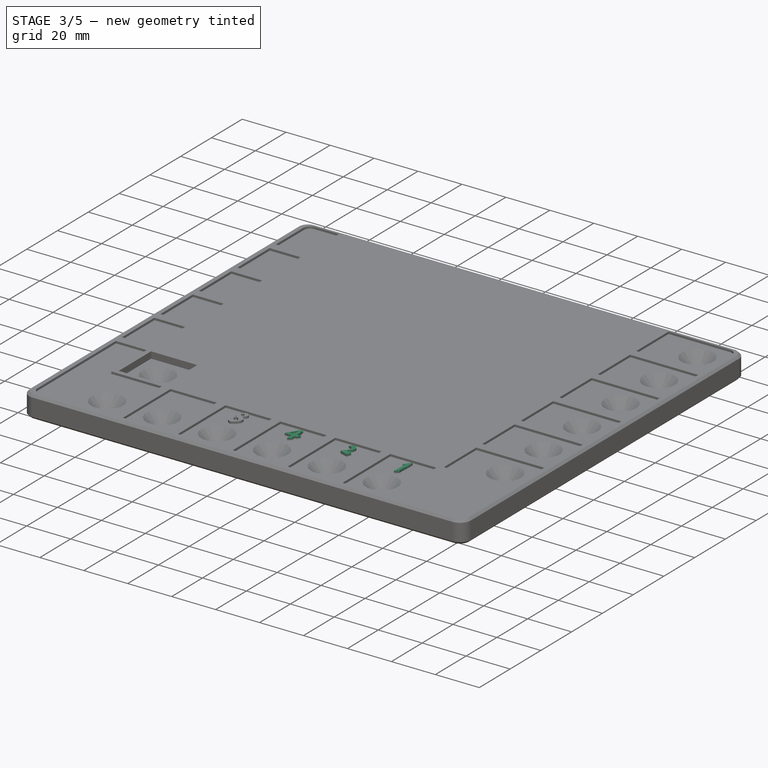
[diagram: stage 3 of 5 — iso view after this stage's code; geometry added in this stage tinted green]
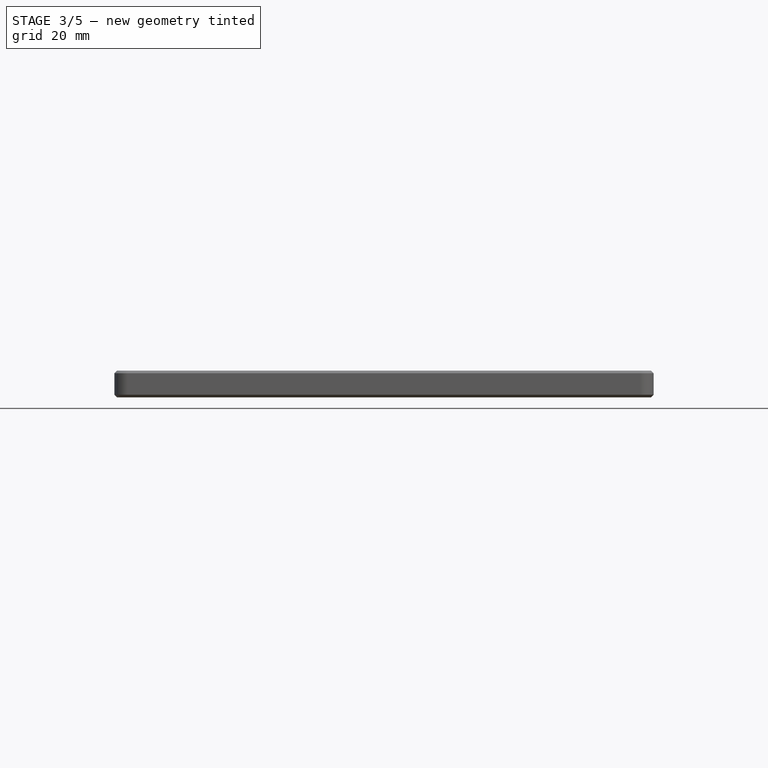
[diagram: stage 3 of 5 — front view after this stage's code; geometry added in this stage tinted green]
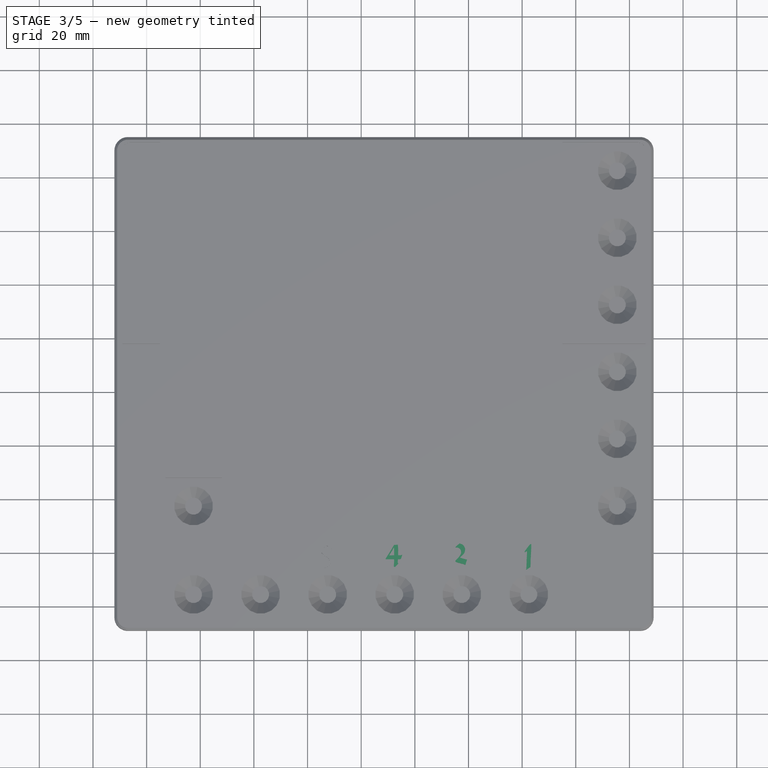
[diagram: stage 3 of 5 — top view after this stage's code; geometry added in this stage tinted green]
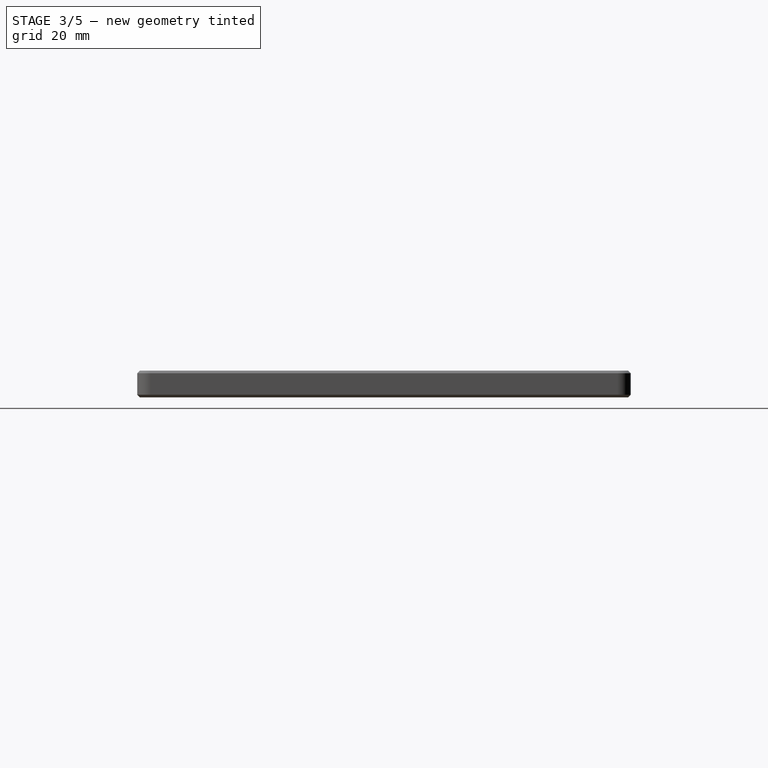
[diagram: stage 3 of 5 — right view after this stage's code; geometry added in this stage tinted green]
FEATURE [Part::Extrusion] Extrude004
  Base = -> Face002
  Dir = (0,0,-1)
  DirMode = 0
  FaceMakerClass = Part::FaceMakerBullseye
  FaceMakerMode = 3
  LengthFwd = 2
  LengthRev = 0
  Placement = pos=(-49.6,76,0) rot=(0,0,1;0rad)
  Solid = false
  Symmetric = false
FEATURE [Part::Extrusion] Extrude005
  Base = -> Cut
  Dir = (0,0,-1)
  DirMode = 0
  FaceMakerClass = Part::FaceMakerBullseye
  FaceMakerMode = 3
  LengthFwd = 2
  LengthRev = 0
  Placement = pos=(-55.6,76,0) rot=(0,0,1;0rad)
  Solid = false
  Symmetric = false
FEATURE [Part::Cut] Cut003
  Base = -> Face013
  Tool = -> Face014
FEATURE [Part::Extrusion] Extrude007
  Base = -> Cut003
  Dir = (0,0,-1)
  DirMode = 0
  FaceMakerClass = Part::FaceMakerBullseye
  FaceMakerMode = 3
  LengthFwd = 2
  LengthRev = 0
  Placement = pos=(-92.2,76,0) rot=(0,0,1;0rad)
  Solid = false
  Symmetric = false
FEATURE [Part::Extrusion] Extrude009
  Base = -> Face006
  Dir = (0,0,-1)
  DirMode = 0
  FaceMakerClass = Part::FaceMakerBullseye
  FaceMakerMode = 3
  LengthFwd = 2
  LengthRev = 0
  Placement = pos=(-68.1,76,0) rot=(0,0,1;0rad)
  Solid = false
  Symmetric = false
FEATURE [Part::FeaturePython] Clone022  label="Part1032"  # Draft clone (typed FeaturePython)
  AttacherType = Attacher::AttachEngine3D
  Fuse = false
  Objects = -> [Part005]
  Placement = pos=(0.4,0,0) rot=(0,0,1;0rad)
  Scale = (1.3,1.3,1.3)
FEATURE [App::Part] Part012  label="Part256"
  Group = -> [Clone008,Clone007,Clone022]
  Origin = -> Origin013
  Placement = pos=(-81,12.5,0) rot=(0,0,1;4.71239rad)
FEATURE [Part::FeaturePython] Clone023  label="Part1033"  # Draft clone (typed FeaturePython)
  AttacherType = Attacher::AttachEngine3D
  Fuse = false
  Objects = -> [Part003]
  Placement = pos=(-3,0,0) rot=(0,0,1;0rad)
  Scale = (1.3,1.3,1.3)
FEATURE [Part::FeaturePython] Clone024  label="Part1034"  # Draft clone (typed FeaturePython)
  AttacherType = Attacher::AttachEngine3D
  Fuse = false
  Objects = -> [Part006]
  Placement = pos=(2,0,0) rot=(0,0,1;0rad)
  Scale = (1.3,1.3,1.3)
FEATURE [Part::FeaturePython] Clone025  label="Part1035"  # Draft clone (typed FeaturePython)
  AttacherType = Attacher::AttachEngine3D
  Fuse = false
  Objects = -> [Part001]
  Placement = pos=(63,-80,0) rot=(0,0,1;0rad)
  Scale = (1.3,1.3,1.3)
FEATURE [Part::FeaturePython] Clone026  label="Part1036"  # Draft clone (typed FeaturePython)
  AttacherType = Attacher::AttachEngine3D
  Fuse = false
  Objects = -> [Part002]
  Placement = pos=(38,-80,0) rot=(0,0,1;0rad)
  Scale = (1.3,1.3,1.3)
FEATURE [Part::FeaturePython] Clone027  label="Part1037"  # Draft clone (typed FeaturePython)
  AttacherType = Attacher::AttachEngine3D
  Fuse = false
  Objects = -> [Part004]
  Placement = pos=(13,-80,0) rot=(0,0,1;0rad)
  Scale = (1.3,1.3,1.3)
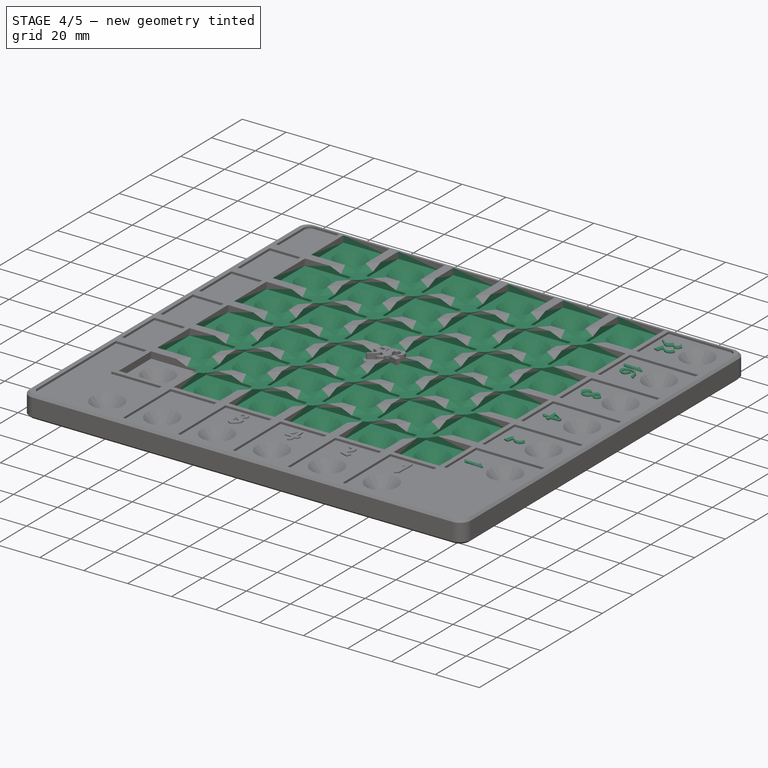
[diagram: stage 4 of 5 — iso view after this stage's code; geometry added in this stage tinted green]
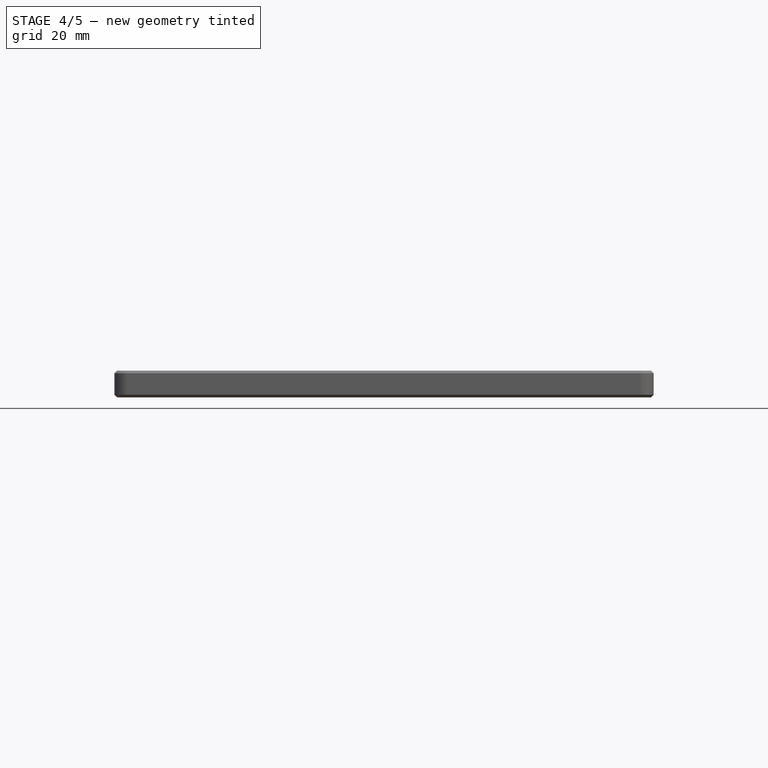
[diagram: stage 4 of 5 — front view after this stage's code; geometry added in this stage tinted green]
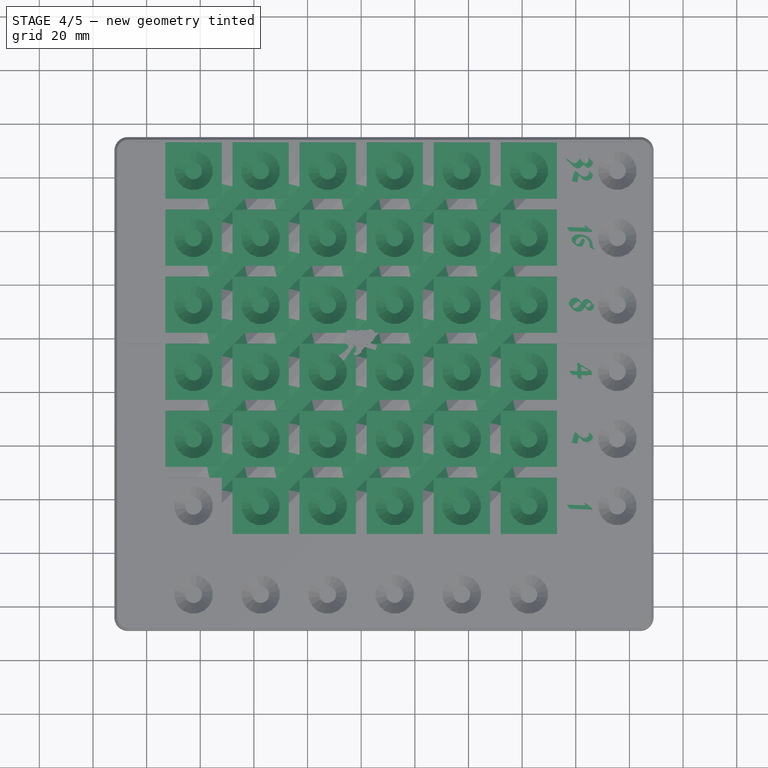
[diagram: stage 4 of 5 — top view after this stage's code; geometry added in this stage tinted green]
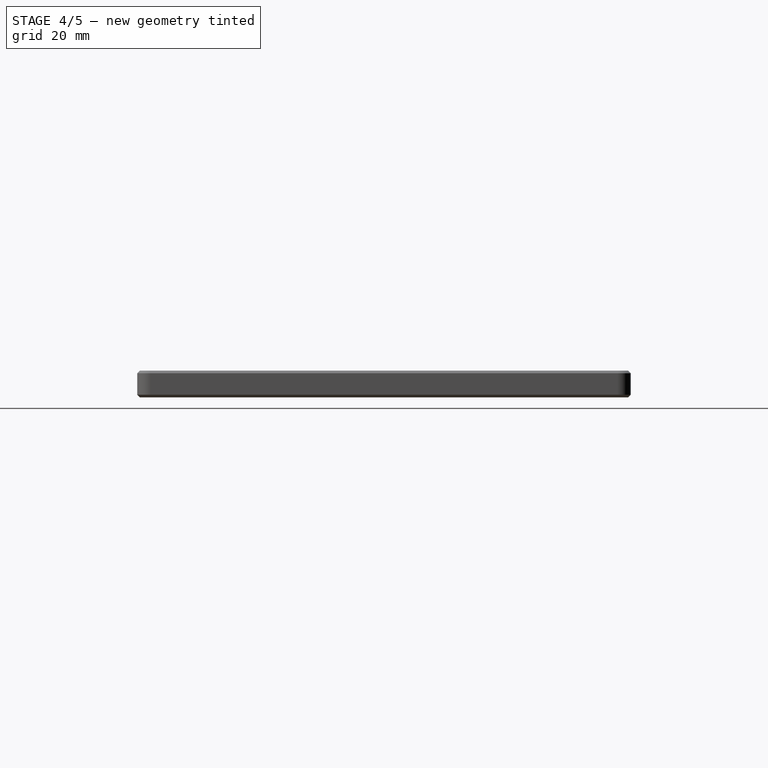
[diagram: stage 4 of 5 — right view after this stage's code; geometry added in this stage tinted green]
FEATURE [App::Part] Part014  label="Part64"
  Group = -> [Clone003,Clone002]
  Origin = -> Origin015
  Placement = pos=(-81,-37,0) rot=(0,0,-1;1.5708rad)
FEATURE [Part::FeaturePython] Clone015  label="Part1025"  # Draft clone (typed FeaturePython)
  AttacherType = Attacher::AttachEngine3D
  Fuse = false
  Objects = -> [Part001]
  Placement = pos=(83,-63.5,0) rot=(0,0,1;4.71239rad)
  Scale = (1.3,1.3,1.3)
FEATURE [Part::FeaturePython] Clone016  label="Part1026"  # Draft clone (typed FeaturePython)
  AttacherType = Attacher::AttachEngine3D
  Fuse = false
  Objects = -> [Part002]
  Placement = pos=(83,-38,0) rot=(0,0,1;4.71239rad)
  Scale = (1.3,1.3,1.3)
FEATURE [Part::FeaturePython] Clone017  label="Part1027"  # Draft clone (typed FeaturePython)
  AttacherType = Attacher::AttachEngine3D
  Fuse = false
  Objects = -> [Part004]
  Placement = pos=(83,-13,0) rot=(0,0,1;4.71239rad)
  Scale = (1.3,1.3,1.3)
FEATURE [Sketcher::SketchObject] Sketch007
  AttachmentOffset = pos=(0,-2,0) rot=(0,1,0;-0.785398rad)
  AttachmentSupport = -> [XZ_Plane018]
  FullyConstrained = true
  MapMode = 5
  Placement = pos=(0,-4e-16,-2) rot=(-0.862856,0.357407,0.357407;4.56541rad)
  Support = -> [XZ_Plane018]
  sketch-geometry (30):
    g0: LineSegment StartX=-3.25 StartY=0 StartZ=0 EndX=3.25 EndY=0 EndZ=0
    g1: LineSegment StartX=3.25 StartY=0 StartZ=0 EndX=8.83887 EndY=3.22674 EndZ=0
    g2: LineSegment StartX=-8.83887 StartY=3.22674 StartZ=0 EndX=-3.25 EndY=0 EndZ=0
    g3: Circle CenterX=0 CenterY=12.5574 CenterZ=0 NormalX=0 NormalY=0 NormalZ=1 AngleXU=0 Radius=12.5
    g4: LineSegment StartX=8.83887 StartY=3.22674 StartZ=0 EndX=14.4277 EndY=0 EndZ=0
    g5: LineSegment StartX=14.4277 StartY=0 StartZ=0 EndX=20.9277 EndY=0 EndZ=0
    g6: LineSegment StartX=20.9277 StartY=0 StartZ=0 EndX=26.5166 EndY=3.22674 EndZ=0
    g7: LineSegment StartX=26.5166 StartY=3.22674 StartZ=0 EndX=32.1055 EndY=-4e-16 EndZ=0
    g8: LineSegment StartX=32.1055 StartY=0 StartZ=0 EndX=38.6055 EndY=0 EndZ=0
    g9: LineSegment StartX=38.6055 StartY=0 StartZ=0 EndX=44.1944 EndY=3.22674 EndZ=0
    g10: LineSegment StartX=44.1944 StartY=3.22674 StartZ=0 EndX=49.7833 EndY=0 EndZ=0
    g11: LineSegment StartX=49.7833 StartY=0 StartZ=0 EndX=56.2833 EndY=0 EndZ=0
    g12: LineSegment StartX=56.2833 StartY=0 StartZ=0 EndX=61.8721 EndY=3.22674 EndZ=0
    g13: LineSegment StartX=61.8721 StartY=3.22674 StartZ=0 EndX=67.461 EndY=0 EndZ=0
    g14: LineSegment StartX=67.461 StartY=0 StartZ=0 EndX=73.961 EndY=0 EndZ=0
    g15: LineSegment StartX=73.961 StartY=0 StartZ=0 EndX=82.6213 EndY=5 EndZ=0
    g16: LineSegment StartX=82.6213 StartY=5 StartZ=0 EndX=-82.6213 EndY=5 EndZ=0
    g17: LineSegment StartX=-82.6213 StartY=5 StartZ=0 EndX=-73.961 EndY=0 EndZ=0
    g18: LineSegment StartX=-73.961 StartY=0 StartZ=0 EndX=-67.461 EndY=0 EndZ=0
    g19: LineSegment StartX=-67.461 StartY=0 StartZ=0 EndX=-61.8721 EndY=3.22674 EndZ=0
    g20: LineSegment StartX=-61.8721 StartY=3.22674 StartZ=0 EndX=-56.2833 EndY=0 EndZ=0
    g21: LineSegment StartX=-56.2833 StartY=0 StartZ=0 EndX=-49.7833 EndY=0 EndZ=0
    g22: LineSegment StartX=-49.7833 StartY=0 StartZ=0 EndX=-44.1944 EndY=3.22674 EndZ=0
    g23: LineSegment StartX=-44.1944 StartY=3.22674 StartZ=0 EndX=-38.6055 EndY=0 EndZ=0
    g24: LineSegment StartX=-38.6055 StartY=0 StartZ=0 EndX=-32.1055 EndY=0 EndZ=0
    g25: LineSegment StartX=-32.1055 StartY=0 StartZ=0 EndX=-26.5166 EndY=3.22674 EndZ=0
    g26: LineSegment StartX=-26.5166 StartY=3.22674 StartZ=0 EndX=-20.9277 EndY=0 EndZ=0
    g27: LineSegment StartX=-20.9277 StartY=0 StartZ=0 EndX=-14.4277 EndY=0 EndZ=0
    g28: LineSegment StartX=-14.4277 StartY=0 StartZ=0 EndX=-8.83887 EndY=3.22674 EndZ=0
    g29: GeomPoint X=70.711 Y=0 Z=0
  constraints (86):
    c: PointOnObject(g0,g-1)
    c: Coincident(g0,g1)
    c: Coincident(g2,g0)
    c: Symmetric(g0,g0,g-2)
    c: Symmetric(g2,g1,g-2)
    c: DistanceX(g0,g0) = 6.5
    c: PointOnObject(g3,g-2)
    c: Diameter(g3) = 25
    c: Tangent(g3,g1)
    c: Angle(g-1,g1) = 0.523599
    c: Coincident(g1,g4)
    c: PointOnObject(g4,g-1)
    c: Coincident(g4,g5)
    c: PointOnObject(g5,g-1)
    c: Coincident(g5,g6)
    c: Coincident(g6,g7)
    c: PointOnObject(g7,g-1)
    c: Coincident(g7,g8)
    c: PointOnObject(g8,g-1)
    c: Coincident(g8,g9)
    c: Coincident(g9,g10)
    c: PointOnObject(g10,g-1)
    c: Coincident(g10,g11)
    c: Horizontal(g11)
    c: Coincident(g11,g12)
    c: Coincident(g12,g13)
    c: PointOnObject(g13,g-1)
    c: Coincident(g13,g14)
    c: PointOnObject(g14,g-1)
    c: Coincident(g14,g15)
    c: Horizontal(g16)
    c: Coincident(g16,g17)
    c: PointOnObject(g17,g-1)
    c: PointOnObject(g18,g-1)
    c: Coincident(g18,g19)
    c: Coincident(g19,g20)
    c: PointOnObject(g20,g-1)
    c: Coincident(g20,g21)
    c: Horizontal(g21)
    c: Coincident(g21,g22)
    c: Coincident(g22,g23)
    c: PointOnObject(g23,g-1)
    c: Coincident(g23,g24)
    c: PointOnObject(g24,g-1)
    c: Coincident(g24,g25)
    c: Coincident(g25,g26)
    c: PointOnObject(g26,g-1)
    c: Coincident(g26,g27)
    c: PointOnObject(g27,g-1)
    c: Coincident(g27,g28)
    c: Coincident(g28,g2)
    c: Equal(g0,g27)
    c: Equal(g27,g24)
    c: Equal(g24,g21)
    c: Equal(g21,g18)
    c: Parallel(g20,g23)
    c: Parallel(g23,g26)
    c: Parallel(g26,g2)
    c: Equal(g0,g5)
    c: Equal(g5,g8)
    c: Equal(g8,g11)
    c: Equal(g11,g14)
    c: Equal(g12,g9)
    c: Equal(g9,g6)
    c: Equal(g6,g1)
    c: Equal(g1,g28)
    c: Equal(g28,g25)
    c: Equal(g25,g22)
    c: Equal(g22,g19)
    c: Parallel(g28,g25)
    c: Parallel(g25,g22)
    c: Parallel(g19,g22)
    c: DistanceY(g16) = 5
    c: Parallel(g6,g1)
    c: Equal(g7,g4)
    c: Parallel(g6,g9)
    c: Equal(g7,g10)
    c: Parallel(g9,g12)
    c: Parallel(g13,g10)
    c: Parallel(g12,g15)
    c: Parallel(g4,g2)
    c: Coincident(g15,g16)
    c: Symmetric(g13,g14,g29)
    c: DistanceX(g29) = 70.711
    c: Parallel(g20,g17)
    c: Coincident(g17,g18)
FEATURE [PartDesign::Pad] Pad001
  Direction = (-0.707107,-0.707107,1e-16)
  Length = 180
  Length2 = 10
  Midplane = true
  Placement = pos=(0,0,0) rot=(1,0,0;1.5708rad)
  Profile = -> Sketch007
  ReferenceAxis = -> Sketch007 [N_Axis]
  Suppressed = false
  Type = 0
FEATURE [Sketcher::SketchObject] Sketch008
  AttachmentSupport = -> [XY_Plane018]
  FullyConstrained = true
  MapMode = 5
  Support = -> [XY_Plane018]
  sketch-geometry (10):
    g0: LineSegment StartX=-150 StartY=57.5 StartZ=0 EndX=-62.5 EndY=57.5 EndZ=0
    g1: LineSegment StartX=-62.5 StartY=57.5 StartZ=0 EndX=-62.5 EndY=-62.5 EndZ=0
    g2: LineSegment StartX=-62.5 StartY=-62.5 StartZ=0 EndX=62.5 EndY=-62.5 EndZ=0
    g3: LineSegment StartX=62.5 StartY=-62.5 StartZ=0 EndX=62.5 EndY=62.5 EndZ=0
    g4: LineSegment StartX=62.5 StartY=62.5 StartZ=0 EndX=-57.5 EndY=62.5 EndZ=0
    g5: LineSegment StartX=-57.5 StartY=62.5 StartZ=0 EndX=-57.5 EndY=150 EndZ=0
    g6: LineSegment StartX=-57.5 StartY=150 StartZ=0 EndX=150 EndY=150 EndZ=0
    g7: LineSegment StartX=150 StartY=150 StartZ=0 EndX=150 EndY=-150 EndZ=0
    g8: LineSegment StartX=150 StartY=-150 StartZ=0 EndX=-150 EndY=-150 EndZ=0
    g9: LineSegment StartX=-150 StartY=-150 StartZ=0 EndX=-150 EndY=57.5 EndZ=0
  constraints (27):
    c: Coincident(g0,g1)
    c: Vertical(g1)
    c: Coincident(g1,g2)
    c: Coincident(g2,g3)
    c: Coincident(g3,g4)
    c: Horizontal(g4)
    c: Coincident(g4,g5)
    c: Vertical(g5)
    c: Coincident(g5,g6)
    c: Horizontal(g6)
    c: Coincident(g6,g7)
    c: Vertical(g7)
    c: Coincident(g7,g8)
    c: Coincident(g8,g9)
    c: Coincident(g9,g0)
    c: Vertical(g9)
    c: Equal(g0,g5)
    c: Equal(g9,g6)
    c: Equal(g8,g7)
    c: Horizontal(g0)
    c: Equal(g1,g4)
    c: Symmetric(g1,g2,g-2)
    c: DistanceX(g2,g2) = 125
    c: Symmetric(g2,g3,g-1)
    c: Symmetric(g8,g7,g-2)
    c: DistanceX(g8,g8) = 300
    c: DistanceX(g4,g4) = 120
FEATURE [PartDesign::Pocket] Pocket005
  BaseFeature = -> Pad001
  Direction = (0,0,-1)
  Length = 5
  Length2 = 5
  Midplane = true
  Placement = pos=(0,0,0) rot=(1,0,0;1.5708rad)
  Profile = -> Sketch008
  ReferenceAxis = -> Sketch008 [N_Axis]
  Suppressed = false
  Type = 1
FEATURE [PartDesign::Body] Body001  label="diagonals"
  AllowCompound = false
  Group = -> [Sketch007,Pad001,Sketch008,Pocket005]
  Origin = -> Origin018
  Tip = -> Pocket005
FEATURE [Part::FeaturePython] Clone021  label="Part1031"  # Draft clone (typed FeaturePython)
  AttacherType = Attacher::AttachEngine3D
  Fuse = false
  Objects = -> [Part]
  Placement = pos=(-1,0,0) rot=(0,0,1;0rad)
  Scale = (1.3,1.3,1.3)
FEATURE [App::Part] Part015  label="Part32"
  Group = -> [Clone001,Clone023]
  Origin = -> Origin016
  Placement = pos=(-70,-80,0) rot=(0,0,1;0rad)
FEATURE [Part::FeaturePython] Clone020  label="Part1030"  # Draft clone (typed FeaturePython)
  AttacherType = Attacher::AttachEngine3D
  Fuse = false
  Objects = -> [Part015]
  Placement = pos=(83,61.5,0) rot=(0,0,1;4.71239rad)
  Scale = (1,1,1)
FEATURE [App::Part] Part016  label="Part16"
  Group = -> [Clone,Clone024]
  Origin = -> Origin017
  Placement = pos=(-37.5,-80,0) rot=(0,0,1;0rad)
FEATURE [Part::FeaturePython] Clone019  label="Part1029"  # Draft clone (typed FeaturePython)
  AttacherType = Attacher::AttachEngine3D
  Fuse = false
  Objects = -> [Part016]
  Placement = pos=(83,37,0) rot=(0,0,1;4.71239rad)
  Scale = (1,1,1)
FEATURE [PartDesign::MultiTransform] MultiTransform
  BaseFeature = -> Pocket007
  Originals = -> [Pocket006,Pocket007]
  Refine = true
  Suppressed = false
  TransformMode = 0
  Transformations = -> [LinearPattern,LinearPattern001]
FEATURE [PartDesign::Body] Body
  AllowCompound = false
  Group = -> [Sketch,Pad,Chamfer,Sketch002,Sketch004,Pocket002,Sketch003,Sketch010,Pocket008,Pocket006,Pocket007,MultiTransform,LinearPattern,LinearPattern001,Sketch009]
  Origin = -> Origin
  Tip = -> MultiTransform
FEATURE [Part::Cut] Cut004
  Base = -> Body
  Placement = pos=(0,0,0.5) rot=(0,0,1;0rad)
  Tool = -> Body001
FEATURE [App::Part] Part013  label="Part128"
  Group = -> [Clone006,Clone005,Clone004]
  Origin = -> Origin014
  Placement = pos=(-81,-11,0) rot=(0,0,1;4.71239rad)
FEATURE [Part::FeaturePython] Clone018  label="Part1028"  # Draft clone (typed FeaturePython)
  AttacherType = Attacher::AttachEngine3D
  Fuse = false
  Objects = -> [Part008]
  Placement = pos=(83,11.5,0) rot=(0,0,1;4.71239rad)
  Scale = (1.3,1.3,1.3)
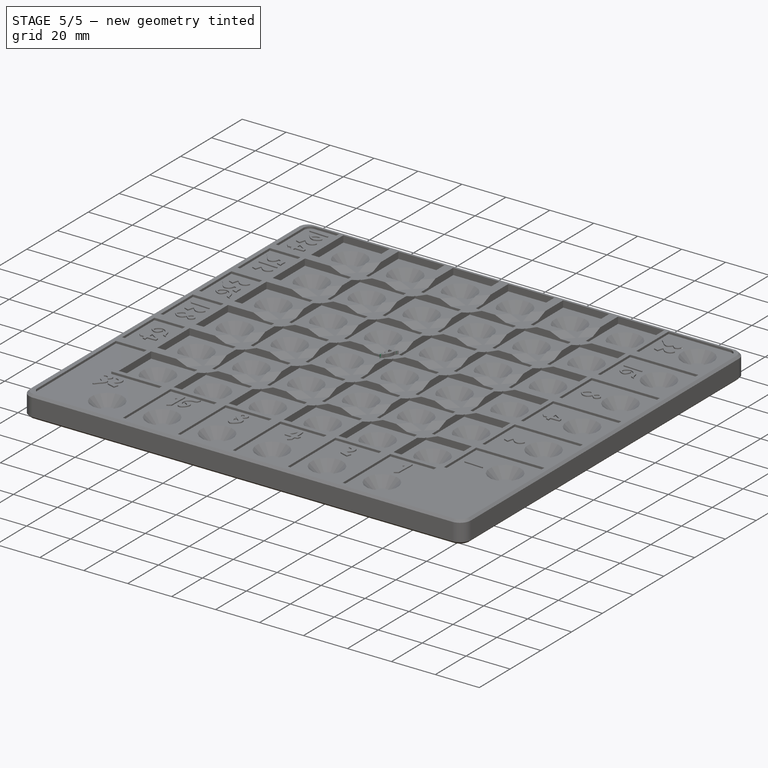
[diagram: stage 5 of 5 — iso view after this stage's code; geometry added in this stage tinted green]
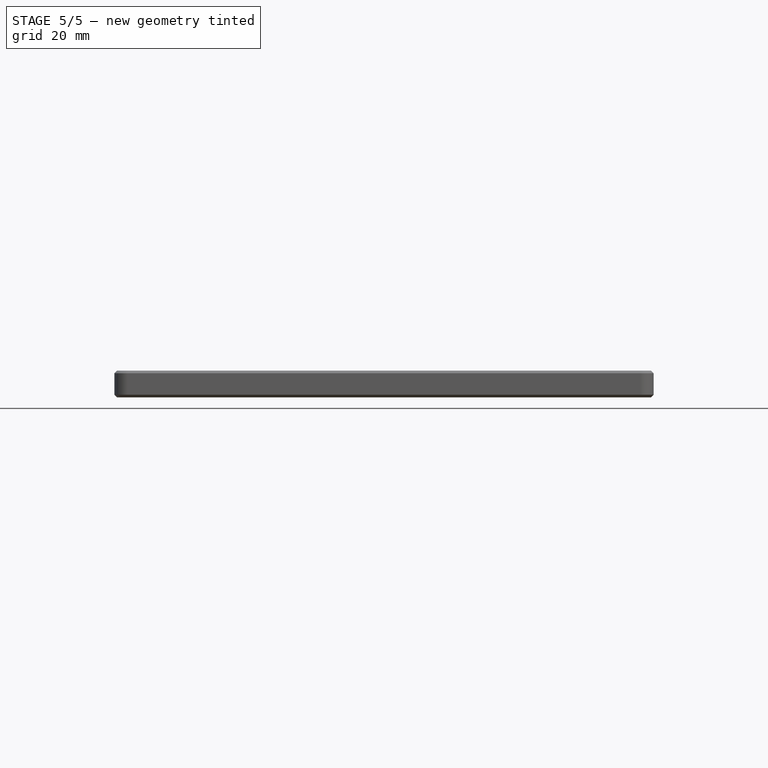
[diagram: stage 5 of 5 — front view after this stage's code; geometry added in this stage tinted green]
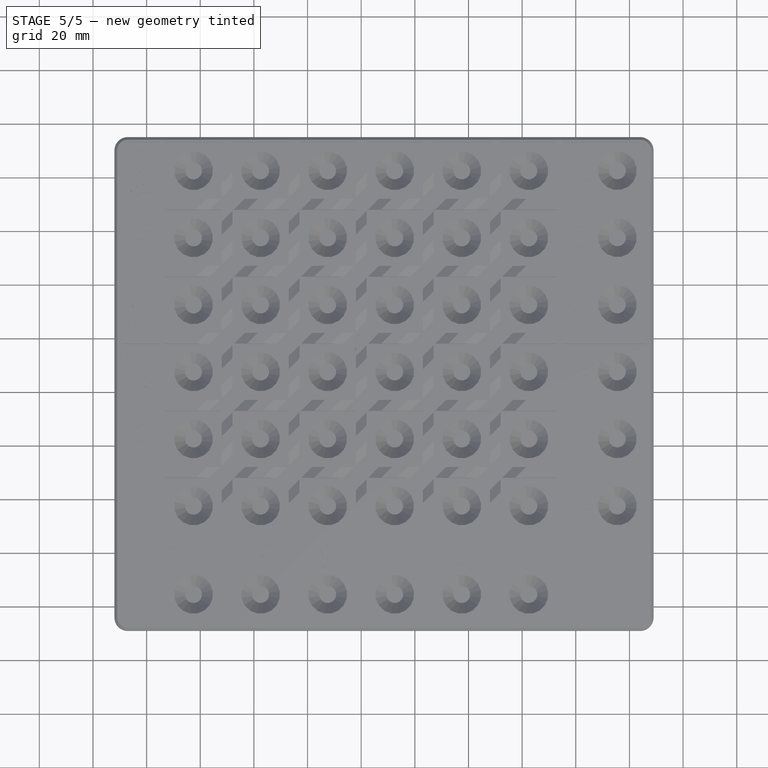
[diagram: stage 5 of 5 — top view after this stage's code; geometry added in this stage tinted green]
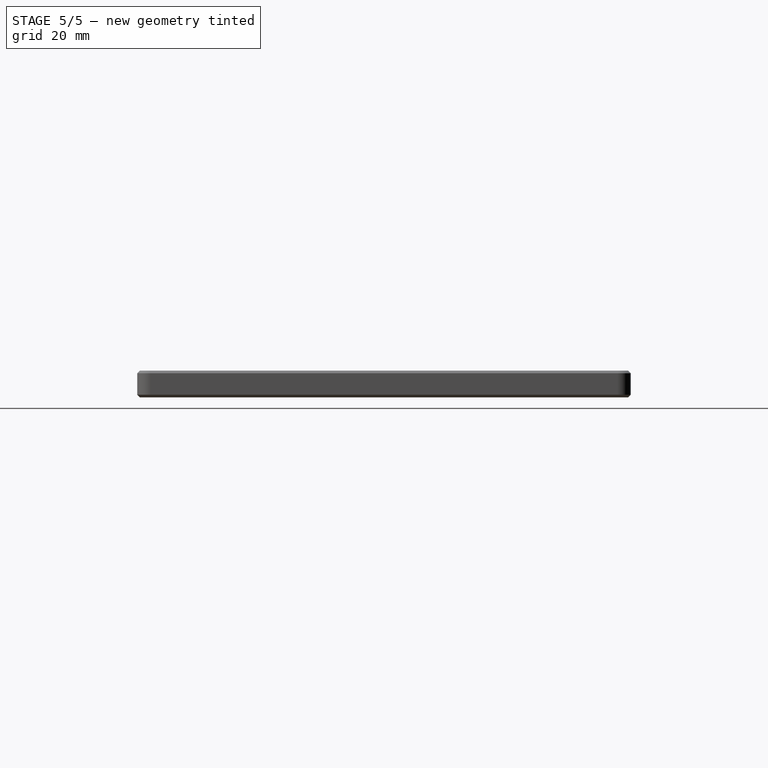
[diagram: stage 5 of 5 — right view after this stage's code; geometry added in this stage tinted green]
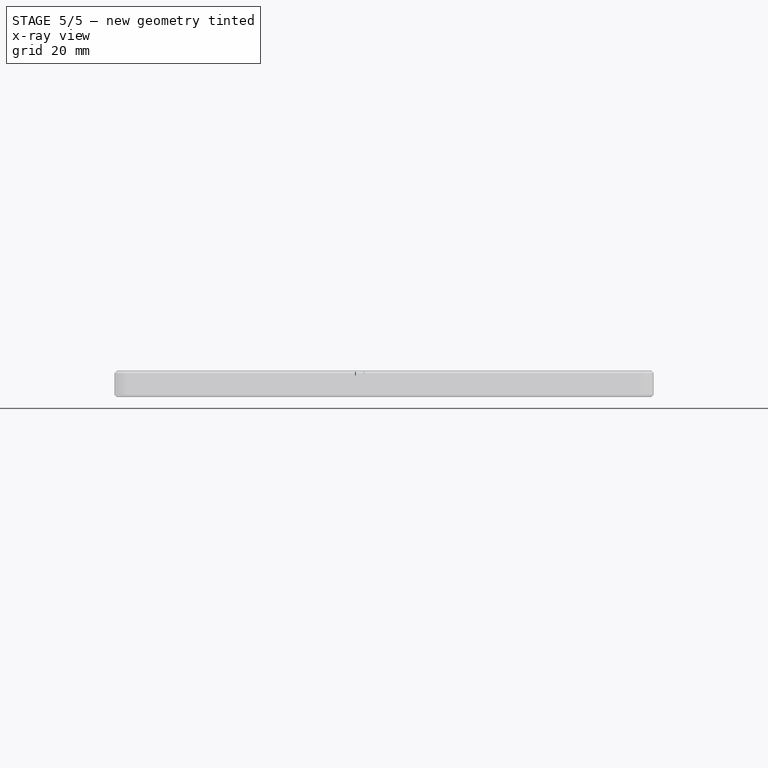
[diagram: stage 5 of 5 — x-ray composite at the front view; earlier geometry ghosted, this stage's added geometry solid]
FEATURE [Part::Cut] Cut002
  Base = -> Face011
  Tool = -> Face012
FEATURE [Part::Extrusion] Extrude006
  Base = -> Cut002
  Dir = (0,0,-1)
  DirMode = 0
  FaceMakerClass = Part::FaceMakerBullseye
  FaceMakerMode = 3
  LengthFwd = 2
  LengthRev = 0
  Placement = pos=(-86.8,76,0) rot=(0,0,1;0rad)
  Solid = false
  Symmetric = false
FEATURE [Part::Extrusion] Extrude008
  Base = -> Face007
  Dir = (0,0,-1)
  DirMode = 0
  FaceMakerClass = Part::FaceMakerBullseye
  FaceMakerMode = 3
  LengthFwd = 2
  LengthRev = 0
  Placement = pos=(-74,76,0) rot=(0,0,1;0rad)
  Solid = false
  Symmetric = false
FEATURE [Part::FeaturePython] Clone002  label="Part012"  # Draft clone (typed FeaturePython)
  AttacherType = Attacher::AttachEngine3D
  Fuse = false
  Objects = -> [Part006]
  Placement = pos=(-2,0,0) rot=(0,0,1;0rad)
  Scale = (1.3,1.3,1.3)
FEATURE [Part::FeaturePython] Clone003  label="Part013"  # Draft clone (typed FeaturePython)
  AttacherType = Attacher::AttachEngine3D
  Fuse = false
  Objects = -> [Part004]
  Placement = pos=(4,0,0) rot=(0,0,1;0rad)
  Scale = (1.3,1.3,1.3)
FEATURE [Part::FeaturePython] Clone007  label="Part017"  # Draft clone (typed FeaturePython)
  AttacherType = Attacher::AttachEngine3D
  Fuse = false
  Objects = -> [Clone005]
  Placement = pos=(-5,0,0) rot=(0,0,1;0rad)
  Scale = (1,1,1)
FEATURE [Part::FeaturePython] Clone008  label="Part018"  # Draft clone (typed FeaturePython)
  AttacherType = Attacher::AttachEngine3D
  Fuse = false
  Objects = -> [Clone002]
  Placement = pos=(6,0,0) rot=(0,0,1;0rad)
  Scale = (1,1,1)
FEATURE [Part::FeaturePython] Clone014  label="Part024"  # Draft clone (typed FeaturePython)
  AttacherType = Attacher::AttachEngine3D
  Fuse = false
  Objects = -> [Clone003]
  Placement = pos=(10,0,0) rot=(0,0,1;0rad)
  Scale = (1,1,1)
FEATURE [Part::FeaturePython] Clone013  label="Part023"  # Draft clone (typed FeaturePython)
  AttacherType = Attacher::AttachEngine3D
  Fuse = false
  Objects = -> [Clone011]
  Placement = pos=(4,0,0) rot=(0,0,1;0rad)
  Scale = (1,1,1)
FEATURE [App::Part] Part008
  Group = -> [Box,Face008,Face009,Face010,Fusion,Cut001,Extrude,Fusion002]
  Origin = -> Origin009
  Placement = pos=(-20.5,-83,0) rot=(0,0,1;0rad)
FEATURE [Part::FeaturePython] Clone006  label="Part016"  # Draft clone (typed FeaturePython)
  AttacherType = Attacher::AttachEngine3D
  Fuse = false
  Objects = -> [Part008]
  Placement = pos=(7,0,0) rot=(0,0,1;0rad)
  Scale = (1.3,1.3,1.3)
FEATURE [Part::MultiFuse] Fusion001
  Shapes = -> [Part010,Part012,Part013,Part014,Part015,Part016,Clone015,Clone016,Clone017,Clone018,Clone019,Clone020,Cut004,Clone025,Clone026,Clone027,Clone028,Part017]
FEATURE [App::Link] Link  label="PrintablesQR"
  LinkPlacement = pos=(73.8,-73.8,0.5) rot=(0,0,1;0rad)
  LinkedObject = -> <external qr/printables.FCStd>#Clone
  Placement = pos=(73.8,-73.8,0.5) rot=(0,0,1;0rad)
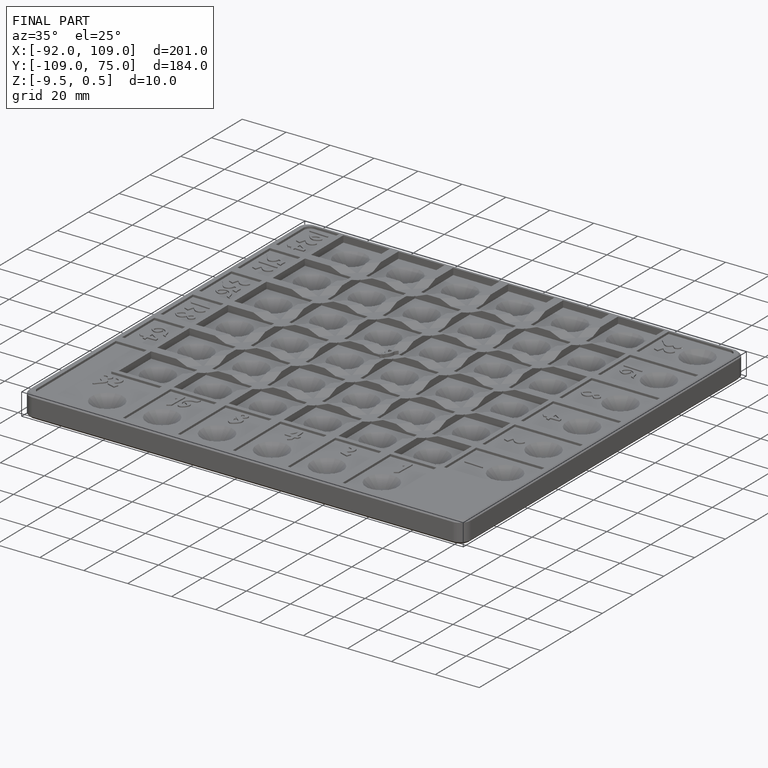
[diagram: finished part — iso view with bounding-box wireframe]
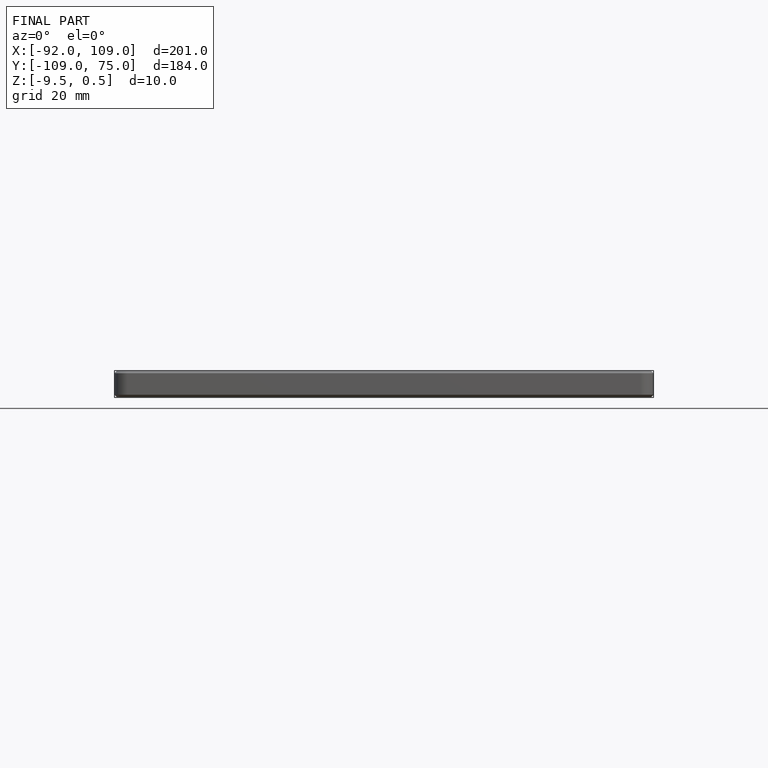
[diagram: finished part — front view with bounding-box wireframe]
